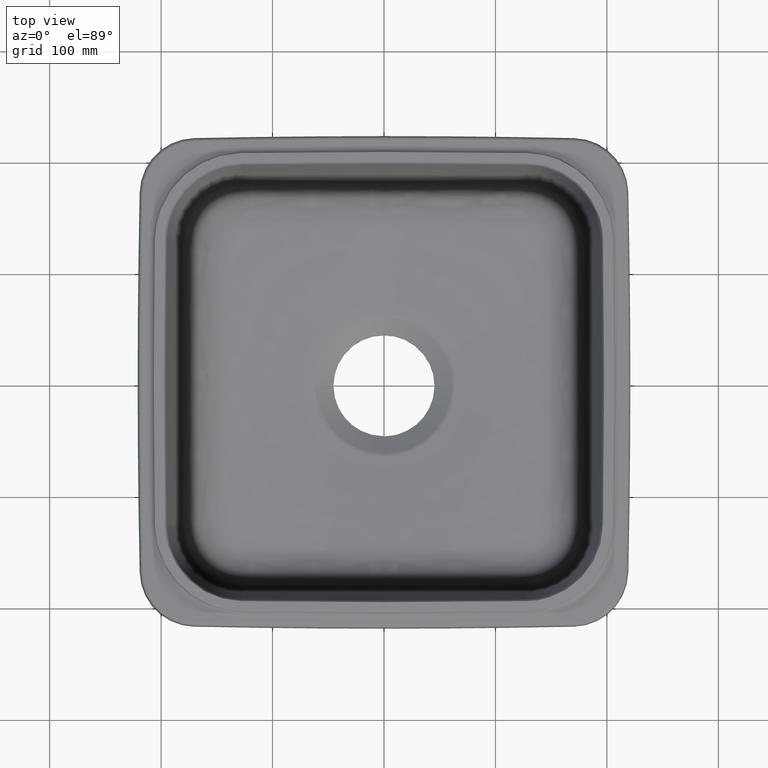
[diagram: clean part render]
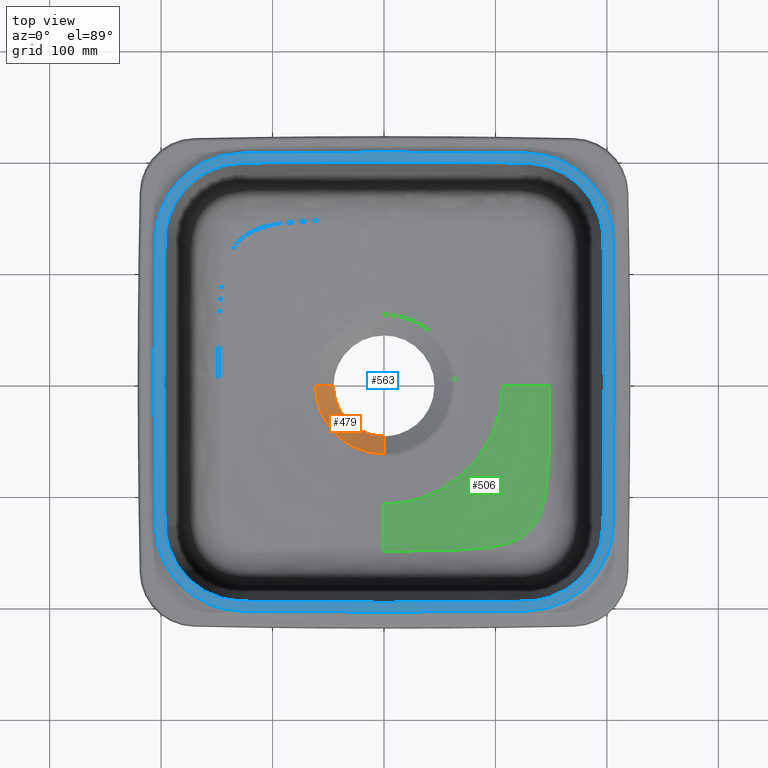
[diagram: same view with three faces highlighted in distinct colors, each labeled with its STEP entity id]
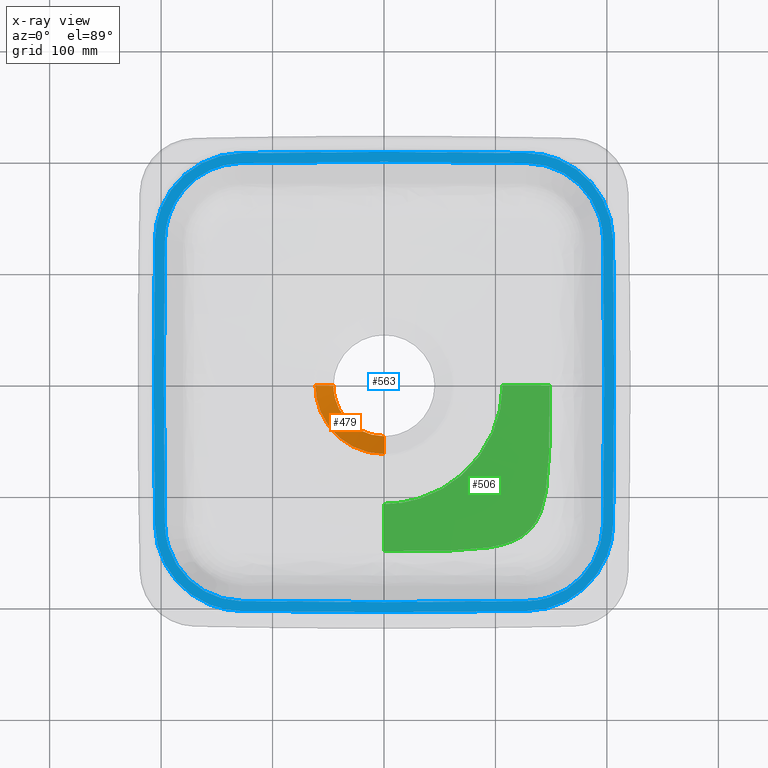
[diagram: x-ray of the same camera — body ghosted, the three highlighted faces saturated]
A machine part, top view with three faces highlighted in distinct colors.
The next image is the same camera in x-ray (body ghosted, the three faces saturated) — at least one of them is partly hidden behind the body in this view.
Their STEP definitions:

[orange] entity #479 — the highlighted conical surface has half-angle 60 deg.
#60=CONICAL_SURFACE('',#3050,62.5,59.9999999999997);
#336=LINE('',#11902,#362);
#346=LINE('',#11997,#372);
#362=VECTOR('',#3275,1.);
#372=VECTOR('',#3335,1.);
#479=ADVANCED_FACE('',(#757),#60,.F.);
#757=FACE_OUTER_BOUND('',#957,.T.);
#957=EDGE_LOOP('',(#1532,#1533,#1534,#1535));
#1532=ORIENTED_EDGE('',*,*,#2472,.F.);
#1533=ORIENTED_EDGE('',*,*,#2473,.F.);
#1534=ORIENTED_EDGE('',*,*,#2444,.T.);
#1535=ORIENTED_EDGE('',*,*,#2474,.T.);
#2096=VERTEX_POINT('',#11903);
#2097=VERTEX_POINT('',#11904);
#2112=VERTEX_POINT('',#11998);
#2113=VERTEX_POINT('',#11999);
#2444=EDGE_CURVE('',#2096,#2097,#336,.T.);
#2472=EDGE_CURVE('',#2112,#2113,#346,.T.);
#2473=EDGE_CURVE('',#2096,#2112,#2838,.T.);
#2474=EDGE_CURVE('',#2097,#2113,#2839,.T.);
#2838=B_SPLINE_CURVE_WITH_KNOTS('',3,(#12000,#12001,#12002,#12003,#12004,
#12005,#12006,#12007,#12008,#12009,#12010,#12011,#12012,#12013,#12014,#12015,
#12016,#12017),.UNSPECIFIED.,.F.,.F.,(4,2,2,2,2,2,2,2,4),(0.,0.125,0.25,
0.375,0.5,0.625,0.75,0.875,1.),.UNSPECIFIED.);
#2839=B_SPLINE_CURVE_WITH_KNOTS('',3,(#12018,#12019,#12020,#12021,#12022,
#12023,#12024,#12025,#12026,#12027),.UNSPECIFIED.,.F.,.F.,(4,2,2,2,4),(0.,
0.25,0.5,0.75,1.),.UNSPECIFIED.);
#3050=AXIS2_PLACEMENT_3D('',#12028,#3336,#3337);
#3275=DIRECTION('',(0.,0.866025403784436,-0.500000000000005));
#3335=DIRECTION('',(0.866025403784436,0.,-0.500000000000005));
#3336=DIRECTION('',(0.,0.,1.));
#3337=DIRECTION('',(-1.,0.,0.));
#11902=CARTESIAN_POINT('',(0.,0.,-36.084391824352));
#11903=CARTESIAN_POINT('',(6.23757597193778E-18,-61.4894681560618,-0.58343083212239));
#11904=CARTESIAN_POINT('',(-5.55460502255055E-15,-45.3567920678671,-9.89763571439079));
#11997=CARTESIAN_POINT('',(0.,0.,-36.084391824352));
#11998=CARTESIAN_POINT('',(-61.4894681560719,2.88798275662869E-30,-0.583430832116606));
#11999=CARTESIAN_POINT('',(-45.3567920678671,4.44368401804044E-15,-9.89763571439079));
#12000=CARTESIAN_POINT('',(1.09093221995658E-14,-61.4894681560699,-0.583430832117732));
#12001=CARTESIAN_POINT('',(-4.05588853231333,-61.4894681560699,-0.583430832117736));
#12002=CARTESIAN_POINT('',(-8.11559781146405,-61.083395852631,-0.583456137974551));
#12003=CARTESIAN_POINT('',(-15.9837025625754,-59.5110030152214,-0.583484067954009));
#12004=CARTESIAN_POINT('',(-19.8101664505475,-58.3497483226402,-0.583489120135852));
#12005=CARTESIAN_POINT('',(-27.2459371414985,-55.270219638399,-0.58347763929584));
#12006=CARTESIAN_POINT('',(-30.8372525180338,-53.3480141610561,-0.583462459274189));
#12007=CARTESIAN_POINT('',(-37.4886745529541,-48.903490940101,-0.583437163811027));
#12008=CARTESIAN_POINT('',(-40.5907871532448,-46.3658396491146,-0.583427518490429));
#12009=CARTESIAN_POINT('',(-46.3288475819185,-40.6330030812148,-0.583427661307155));
#12010=CARTESIAN_POINT('',(-48.912786705229,-37.4775273031208,-0.583437296891424));
#12011=CARTESIAN_POINT('',(-53.3649649190723,-30.8091043310762,-0.583462486506762));
#12012=CARTESIAN_POINT('',(-55.2522788855572,-27.2829331698823,-0.583477387008973));
#12013=CARTESIAN_POINT('',(-58.3395305885705,-19.8411038335578,-0.58348928234246));
#12014=CARTESIAN_POINT('',(-59.5203289191283,-15.948316162399,-0.583484121495931));
#12015=CARTESIAN_POINT('',(-61.0873968032196,-8.0842016059379,-0.583455855833687));
#12016=CARTESIAN_POINT('',(-61.4894681560719,-4.05588921292601,-0.583430832116605));
#12017=CARTESIAN_POINT('',(-61.4894681560719,7.05689838044364E-30,-0.583430832116606));
#12018=CARTESIAN_POINT('',(-2.77730251127527E-15,-45.3567920678671,-9.89763571439079));
#12019=CARTESIAN_POINT('',(-5.93719019795046,-45.3567920678671,-9.89763571439079));
#12020=CARTESIAN_POINT('',(-11.872044365088,-44.1762761754287,-9.89763571439079));
#12021=CARTESIAN_POINT('',(-22.8425413741141,-39.6321475283166,-9.89763571439079));
#12022=CARTESIAN_POINT('',(-27.873867793892,-36.2703226942221,-9.89763571439079));
#12023=CARTESIAN_POINT('',(-36.2703226942221,-27.8738677938919,-9.89763571439079));
#12024=CARTESIAN_POINT('',(-39.6321475283166,-22.8425413741141,-9.89763571439079));
#12025=CARTESIAN_POINT('',(-44.1762761754287,-11.872044365088,-9.89763571439079));
#12026=CARTESIAN_POINT('',(-45.3567920678671,-5.93719019795046,-9.89763571439079));
#12027=CARTESIAN_POINT('',(-45.3567920678671,0.,-9.89763571439079));
#12028=CARTESIAN_POINT('',(0.,0.,0.));

[blue] entity #563 — the highlighted planar face has unit normal (0, 0, 1).
#45=FACE_BOUND('',#1042,.T.);
#46=FACE_BOUND('',#1043,.T.);
#93=(
BOUNDED_CURVE()
B_SPLINE_CURVE(3,(#17273,#17274,#17275,#17276),.UNSPECIFIED.,.F.,.F.)
B_SPLINE_CURVE_WITH_KNOTS((4,4),(0.,1.),.UNSPECIFIED.)
CURVE()
GEOMETRIC_REPRESENTATION_ITEM()
RATIONAL_B_SPLINE_CURVE((0.500387600911378,0.500387600911378,0.500387600911378,
0.500387600911378))
REPRESENTATION_ITEM('')
);
#94=(
BOUNDED_CURVE()
B_SPLINE_CURVE(3,(#17293,#17294,#17295,#17296,#17297,#17298,#17299,#17300,
#17301,#17302,#17303,#17304,#17305,#17306,#17307),.UNSPECIFIED.,.F.,.F.)
B_SPLINE_CURVE_WITH_KNOTS((4,1,1,1,1,1,1,1,1,1,1,1,4),(0.,0.125,0.1875,
0.25,0.375,0.4375,0.500000000017339,0.625,0.6875,0.75,0.875,0.9375,1.),
 .UNSPECIFIED.)
CURVE()
GEOMETRIC_REPRESENTATION_ITEM()
RATIONAL_B_SPLINE_CURVE((0.500387600911378,0.500387600911378,0.500387600911378,
0.500387600911378,0.500387600911378,0.500387600911378,0.500387600911378,
0.500387600911378,0.500387600911378,0.500387600911378,0.500387600911378,
0.500387600911378,0.500387600911378,0.500387600911378,0.500387600911378))
REPRESENTATION_ITEM('')
);
#95=(
BOUNDED_CURVE()
B_SPLINE_CURVE(3,(#17355,#17356,#17357,#17358),.UNSPECIFIED.,.F.,.F.)
B_SPLINE_CURVE_WITH_KNOTS((4,4),(0.,1.),.UNSPECIFIED.)
CURVE()
GEOMETRIC_REPRESENTATION_ITEM()
RATIONAL_B_SPLINE_CURVE((0.500387600911378,0.500387600911378,0.500387600911378,
0.500387600911378))
REPRESENTATION_ITEM('')
);
#96=(
BOUNDED_CURVE()
B_SPLINE_CURVE(3,(#17373,#17374,#17375,#17376),.UNSPECIFIED.,.F.,.F.)
B_SPLINE_CURVE_WITH_KNOTS((4,4),(0.,1.),.UNSPECIFIED.)
CURVE()
GEOMETRIC_REPRESENTATION_ITEM()
RATIONAL_B_SPLINE_CURVE((0.500387600911378,0.500387600911378,0.500387600911378,
0.500387600911378))
REPRESENTATION_ITEM('')
);
#97=(
BOUNDED_CURVE()
B_SPLINE_CURVE(3,(#17391,#17392,#17393,#17394,#17395,#17396,#17397,#17398,
#17399,#17400,#17401,#17402,#17403,#17404,#17405),.UNSPECIFIED.,.F.,.F.)
B_SPLINE_CURVE_WITH_KNOTS((4,1,1,1,1,1,1,1,1,1,1,1,4),(0.,0.0624999999999998,
0.125,0.25,0.3125,0.375,0.499999999982661,0.5625,0.625,0.75,0.8125,0.875,
1.),.UNSPECIFIED.)
CURVE()
GEOMETRIC_REPRESENTATION_ITEM()
RATIONAL_B_SPLINE_CURVE((0.500387600911378,0.500387600911378,0.500387600911378,
0.500387600911378,0.500387600911378,0.500387600911378,0.500387600911378,
0.500387600911378,0.500387600911378,0.500387600911378,0.500387600911378,
0.500387600911378,0.500387600911378,0.500387600911378,0.500387600911378))
REPRESENTATION_ITEM('')
);
#98=(
BOUNDED_CURVE()
B_SPLINE_CURVE(3,(#17453,#17454,#17455,#17456),.UNSPECIFIED.,.F.,.F.)
B_SPLINE_CURVE_WITH_KNOTS((4,4),(0.,1.),.UNSPECIFIED.)
CURVE()
GEOMETRIC_REPRESENTATION_ITEM()
RATIONAL_B_SPLINE_CURVE((0.500387600911378,0.500387600911378,0.500387600911378,
0.500387600911378))
REPRESENTATION_ITEM('')
);
#99=(
BOUNDED_CURVE()
B_SPLINE_CURVE(3,(#17471,#17472,#17473,#17474),.UNSPECIFIED.,.F.,.F.)
B_SPLINE_CURVE_WITH_KNOTS((4,4),(0.,1.),.UNSPECIFIED.)
CURVE()
GEOMETRIC_REPRESENTATION_ITEM()
RATIONAL_B_SPLINE_CURVE((0.500387600911378,0.500387600911378,0.500387600911378,
0.500387600911378))
REPRESENTATION_ITEM('')
);
#100=(
BOUNDED_CURVE()
B_SPLINE_CURVE(3,(#17489,#17490,#17491,#17492,#17493,#17494,#17495,#17496,
#17497,#17498,#17499,#17500,#17501,#17502,#17503),.UNSPECIFIED.,.F.,.F.)
B_SPLINE_CURVE_WITH_KNOTS((4,1,1,1,1,1,1,1,1,1,1,1,4),(0.,0.125,0.1875,
0.25,0.375,0.4375,0.500000000017339,0.625,0.6875,0.75,0.875,0.9375,1.),
 .UNSPECIFIED.)
CURVE()
GEOMETRIC_REPRESENTATION_ITEM()
RATIONAL_B_SPLINE_CURVE((0.500387600911378,0.500387600911378,0.500387600911378,
0.500387600911378,0.500387600911378,0.500387600911378,0.500387600911378,
0.500387600911378,0.500387600911378,0.500387600911378,0.500387600911378,
0.500387600911378,0.500387600911378,0.500387600911378,0.500387600911378))
REPRESENTATION_ITEM('')
);
#101=(
BOUNDED_CURVE()
B_SPLINE_CURVE(3,(#17551,#17552,#17553,#17554),.UNSPECIFIED.,.F.,.F.)
B_SPLINE_CURVE_WITH_KNOTS((4,4),(0.,1.),.UNSPECIFIED.)
CURVE()
GEOMETRIC_REPRESENTATION_ITEM()
RATIONAL_B_SPLINE_CURVE((0.500387600911378,0.500387600911378,0.500387600911378,
0.500387600911378))
REPRESENTATION_ITEM('')
);
#102=(
BOUNDED_CURVE()
B_SPLINE_CURVE(3,(#17569,#17570,#17571,#17572),.UNSPECIFIED.,.F.,.F.)
B_SPLINE_CURVE_WITH_KNOTS((4,4),(0.,1.),.UNSPECIFIED.)
CURVE()
GEOMETRIC_REPRESENTATION_ITEM()
RATIONAL_B_SPLINE_CURVE((0.500387600911378,0.500387600911378,0.500387600911378,
0.500387600911378))
REPRESENTATION_ITEM('')
);
#103=(
BOUNDED_CURVE()
B_SPLINE_CURVE(3,(#17587,#17588,#17589,#17590,#17591,#17592,#17593,#17594,
#17595,#17596,#17597,#17598,#17599,#17600,#17601),.UNSPECIFIED.,.F.,.F.)
B_SPLINE_CURVE_WITH_KNOTS((4,1,1,1,1,1,1,1,1,1,1,1,4),(0.,0.0624999999999998,
0.125,0.25,0.3125,0.375,0.499999999982661,0.5625,0.625,0.75,0.8125,0.875,
1.),.UNSPECIFIED.)
CURVE()
GEOMETRIC_REPRESENTATION_ITEM()
RATIONAL_B_SPLINE_CURVE((0.500387600911378,0.500387600911378,0.500387600911378,
0.500387600911378,0.500387600911378,0.500387600911378,0.500387600911378,
0.500387600911378,0.500387600911378,0.500387600911378,0.500387600911378,
0.500387600911378,0.500387600911378,0.500387600911378,0.500387600911378))
REPRESENTATION_ITEM('')
);
#104=(
BOUNDED_CURVE()
B_SPLINE_CURVE(3,(#17649,#17650,#17651,#17652),.UNSPECIFIED.,.F.,.F.)
B_SPLINE_CURVE_WITH_KNOTS((4,4),(0.,1.),.UNSPECIFIED.)
CURVE()
GEOMETRIC_REPRESENTATION_ITEM()
RATIONAL_B_SPLINE_CURVE((0.500387600911378,0.500387600911378,0.500387600911378,
0.500387600911378))
REPRESENTATION_ITEM('')
);
#125=PLANE('',#3128);
#563=ADVANCED_FACE('',(#45,#46),#125,.T.);
#1042=EDGE_LOOP('',(#1894,#1895,#1896,#1897,#1898,#1899,#1900,#1901,#1902,
#1903,#1904,#1905));
#1043=EDGE_LOOP('',(#1906,#1907,#1908,#1909,#1910,#1911,#1912,#1913,#1914,
#1915,#1916,#1917));
#1894=ORIENTED_EDGE('',*,*,#2602,.T.);
#1895=ORIENTED_EDGE('',*,*,#2605,.T.);
#1896=ORIENTED_EDGE('',*,*,#2607,.T.);
#1897=ORIENTED_EDGE('',*,*,#2609,.T.);
#1898=ORIENTED_EDGE('',*,*,#2611,.T.);
#1899=ORIENTED_EDGE('',*,*,#2613,.T.);
#1900=ORIENTED_EDGE('',*,*,#2615,.T.);
#1901=ORIENTED_EDGE('',*,*,#2617,.T.);
#1902=ORIENTED_EDGE('',*,*,#2619,.T.);
#1903=ORIENTED_EDGE('',*,*,#2621,.T.);
#1904=ORIENTED_EDGE('',*,*,#2623,.T.);
#1905=ORIENTED_EDGE('',*,*,#2625,.T.);
#1906=ORIENTED_EDGE('',*,*,#2627,.T.);
#1907=ORIENTED_EDGE('',*,*,#2630,.T.);
#1908=ORIENTED_EDGE('',*,*,#2644,.T.);
#1909=ORIENTED_EDGE('',*,*,#2660,.F.);
#1910=ORIENTED_EDGE('',*,*,#2661,.F.);
#1911=ORIENTED_EDGE('',*,*,#2662,.F.);
#1912=ORIENTED_EDGE('',*,*,#2654,.T.);
#1913=ORIENTED_EDGE('',*,*,#2633,.T.);
#1914=ORIENTED_EDGE('',*,*,#2637,.T.);
#1915=ORIENTED_EDGE('',*,*,#2639,.T.);
#1916=ORIENTED_EDGE('',*,*,#2641,.T.);
#1917=ORIENTED_EDGE('',*,*,#2642,.T.);
#2186=VERTEX_POINT('',#17277);
#2187=VERTEX_POINT('',#17278);
#2188=VERTEX_POINT('',#17308);
#2189=VERTEX_POINT('',#17359);
#2190=VERTEX_POINT('',#17377);
#2191=VERTEX_POINT('',#17406);
#2192=VERTEX_POINT('',#17457);
#2193=VERTEX_POINT('',#17475);
#2194=VERTEX_POINT('',#17504);
#2195=VERTEX_POINT('',#17555);
#2196=VERTEX_POINT('',#17573);
#2197=VERTEX_POINT('',#17602);
#2198=VERTEX_POINT('',#17666);
#2199=VERTEX_POINT('',#17671);
#2200=VERTEX_POINT('',#17686);
#2202=VERTEX_POINT('',#17796);
#2203=VERTEX_POINT('',#17813);
#2205=VERTEX_POINT('',#17908);
#2206=VERTEX_POINT('',#17926);
#2207=VERTEX_POINT('',#17944);
#2208=VERTEX_POINT('',#18038);
#2213=VERTEX_POINT('',#19414);
#2216=VERTEX_POINT('',#19607);
#2217=VERTEX_POINT('',#19652);
#2602=EDGE_CURVE('',#2186,#2187,#93,.T.);
#2605=EDGE_CURVE('',#2187,#2188,#94,.T.);
#2607=EDGE_CURVE('',#2188,#2189,#95,.T.);
#2609=EDGE_CURVE('',#2189,#2190,#96,.T.);
#2611=EDGE_CURVE('',#2190,#2191,#97,.T.);
#2613=EDGE_CURVE('',#2191,#2192,#98,.T.);
#2615=EDGE_CURVE('',#2192,#2193,#99,.T.);
#2617=EDGE_CURVE('',#2193,#2194,#100,.T.);
#2619=EDGE_CURVE('',#2194,#2195,#101,.T.);
#2621=EDGE_CURVE('',#2195,#2196,#102,.T.);
#2623=EDGE_CURVE('',#2196,#2197,#103,.T.);
#2625=EDGE_CURVE('',#2197,#2186,#104,.T.);
#2627=EDGE_CURVE('',#2199,#2198,#2922,.T.);
#2630=EDGE_CURVE('',#2198,#2200,#2923,.T.);
#2633=EDGE_CURVE('',#2203,#2202,#2925,.T.);
#2637=EDGE_CURVE('',#2202,#2205,#2927,.T.);
#2639=EDGE_CURVE('',#2205,#2206,#2928,.T.);
#2641=EDGE_CURVE('',#2206,#2207,#2929,.T.);
#2642=EDGE_CURVE('',#2207,#2199,#2930,.T.);
#2644=EDGE_CURVE('',#2200,#2208,#2931,.T.);
#2654=EDGE_CURVE('',#2213,#2203,#2939,.T.);
#2660=EDGE_CURVE('',#2216,#2208,#2943,.T.);
#2661=EDGE_CURVE('',#2217,#2216,#2944,.T.);
#2662=EDGE_CURVE('',#2213,#2217,#2945,.T.);
#2922=B_SPLINE_CURVE_WITH_KNOTS('',3,(#17667,#17668,#17669,#17670),
 .UNSPECIFIED.,.F.,.F.,(4,4),(0.,1.),.UNSPECIFIED.);
#2923=B_SPLINE_CURVE_WITH_KNOTS('',3,(#17688,#17689,#17690,#17691,#17692,
#17693,#17694,#17695,#17696,#17697,#17698,#17699,#17700,#17701,#17702,#17703),
 .UNSPECIFIED.,.F.,.F.,(4,2,2,2,2,2,2,4),(0.,0.125,0.25,0.375,0.500000000000001,
0.625000000000001,0.750000000000001,1.),.UNSPECIFIED.);
#2925=B_SPLINE_CURVE_WITH_KNOTS('',3,(#17797,#17798,#17799,#17800,#17801,
#17802,#17803,#17804,#17805,#17806,#17807,#17808,#17809,#17810,#17811,#17812),
 .UNSPECIFIED.,.F.,.F.,(4,2,2,2,2,2,2,4),(0.,0.125,0.25,0.375,0.5,0.625,
0.75,1.),.UNSPECIFIED.);
#2927=B_SPLINE_CURVE_WITH_KNOTS('',3,(#17909,#17910,#17911,#17912),
 .UNSPECIFIED.,.F.,.F.,(4,4),(0.,1.),.UNSPECIFIED.);
#2928=B_SPLINE_CURVE_WITH_KNOTS('',3,(#17927,#17928,#17929,#17930),
 .UNSPECIFIED.,.F.,.F.,(4,4),(0.,1.),.UNSPECIFIED.);
#2929=B_SPLINE_CURVE_WITH_KNOTS('',3,(#17945,#17946,#17947,#17948,#17949,
#17950,#17951,#17952,#17953,#17954,#17955,#17956,#17957,#17958,#17959,#17960),
 .UNSPECIFIED.,.F.,.F.,(4,2,2,2,2,2,2,4),(0.,0.125,0.25,0.375,0.5,0.625,
0.75,1.),.UNSPECIFIED.);
#2930=B_SPLINE_CURVE_WITH_KNOTS('',3,(#18021,#18022,#18023,#18024),
 .UNSPECIFIED.,.F.,.F.,(4,4),(0.,1.),.UNSPECIFIED.);
#2931=B_SPLINE_CURVE_WITH_KNOTS('',3,(#18040,#18041,#18042,#18043),
 .UNSPECIFIED.,.F.,.F.,(4,4),(0.,1.),.UNSPECIFIED.);
#2939=B_SPLINE_CURVE_WITH_KNOTS('',3,(#19410,#19411,#19412,#19413),
 .UNSPECIFIED.,.F.,.F.,(4,4),(0.,1.),.UNSPECIFIED.);
#2943=B_SPLINE_CURVE_WITH_KNOTS('',3,(#19603,#19604,#19605,#19606),
 .UNSPECIFIED.,.F.,.F.,(4,4),(0.,1.),.UNSPECIFIED.);
#2944=B_SPLINE_CURVE_WITH_KNOTS('',3,(#19608,#19609,#19610,#19611,#19612,
#19613,#19614,#19615,#19616,#19617,#19618,#19619,#19620,#19621,#19622,#19623,
#19624,#19625,#19626,#19627,#19628,#19629,#19630,#19631,#19632,#19633,#19634,
#19635,#19636,#19637,#19638,#19639,#19640,#19641,#19642,#19643,#19644,#19645,
#19646,#19647,#19648,#19649,#19650,#19651),.UNSPECIFIED.,.F.,.F.,(4,2,2,
2,2,1,2,2,2,2,2,2,2,2,2,2,2,2,2,1,2,2,4),(0.,0.124999999999993,0.156249999999992,
0.16406249999999,0.16796874999999,0.17187499999999,0.187499999999989,0.218749999999988,
0.249999999999986,0.374999999999981,0.499999999999976,0.624999999999971,
0.687499999999968,0.718749999999968,0.749999999999967,0.874999999999963,
0.890624999999963,0.892578124999962,0.894531249999962,0.898437499999963,
0.906249999999967,0.937499999999978,1.),.UNSPECIFIED.);
#2945=B_SPLINE_CURVE_WITH_KNOTS('',3,(#19653,#19654,#19655,#19656),
 .UNSPECIFIED.,.F.,.F.,(4,4),(0.,1.),.UNSPECIFIED.);
#3128=AXIS2_PLACEMENT_3D('',#19657,#3493,#3494);
#3493=DIRECTION('',(0.,0.,1.));
#3494=DIRECTION('',(1.,0.,0.));
#17273=CARTESIAN_POINT('',(206.509851607879,1.0263372591154E-13,178.999999985002));
#17274=CARTESIAN_POINT('',(206.509851607879,42.7415496980326,178.999999985002));
#17275=CARTESIAN_POINT('',(206.171518076336,85.5007759135896,178.999999985002));
#17276=CARTESIAN_POINT('',(205.495439926261,128.236964284618,178.999999985002));
#17277=CARTESIAN_POINT('',(206.509851607879,3.42112419705133E-14,178.999999985002));
#17278=CARTESIAN_POINT('',(205.495439926261,128.236964284618,178.999999985002));
#17293=CARTESIAN_POINT('',(205.495439926261,128.236964284618,178.999999985002));
#17294=CARTESIAN_POINT('',(205.416923295608,133.200150034828,178.999999985002));
#17295=CARTESIAN_POINT('',(204.555809768522,140.844863790109,178.999999985002));
#17296=CARTESIAN_POINT('',(202.011156341809,150.563321873851,178.999999985002));
#17297=CARTESIAN_POINT('',(198.540600881032,159.991358526668,178.999999985002));
#17298=CARTESIAN_POINT('',(193.685924551509,168.945459244118,178.999999985002));
#17299=CARTESIAN_POINT('',(187.679171602173,176.998337809509,178.999999985002));
#17300=CARTESIAN_POINT('',(180.923480929248,184.434312897826,178.999999985002));
#17301=CARTESIAN_POINT('',(173.062634141852,190.911319678712,178.999999985002));
#17302=CARTESIAN_POINT('',(164.472321742722,196.120558764205,178.999999985002));
#17303=CARTESIAN_POINT('',(155.419410104508,200.47688692768,178.999999985002));
#17304=CARTESIAN_POINT('',(145.70218667133,203.52957019694,178.999999985002));
#17305=CARTESIAN_POINT('',(135.784396563218,205.133618362025,178.999999985002));
#17306=CARTESIAN_POINT('',(130.717566989622,205.456197275486,178.999999985002));
#17307=CARTESIAN_POINT('',(128.236964281869,205.495439926551,178.999999985002));
#17308=CARTESIAN_POINT('',(128.236964281869,205.495439926551,178.999999985002));
#17355=CARTESIAN_POINT('',(128.236964281869,205.495439926551,178.999999985002));
#17356=CARTESIAN_POINT('',(85.5007759102884,206.171518076444,178.999999985002));
#17357=CARTESIAN_POINT('',(42.7415496986505,206.509851608646,178.999999985002));
#17358=CARTESIAN_POINT('',(-2.00721162005756E-11,206.509851608454,178.999999985002));
#17359=CARTESIAN_POINT('',(6.69070540019178E-12,206.509851608454,178.999999985002));
#17373=CARTESIAN_POINT('',(2.00721162005755E-11,206.509851608454,178.999999985002));
#17374=CARTESIAN_POINT('',(-42.7415496986505,206.509851608646,178.999999985002));
#17375=CARTESIAN_POINT('',(-85.5007759102884,206.171518076444,178.999999985002));
#17376=CARTESIAN_POINT('',(-128.236964281869,205.495439926551,178.999999985002));
#17377=CARTESIAN_POINT('',(-128.236964281869,205.495439926551,178.999999985002));
#17391=CARTESIAN_POINT('',(-128.236964281869,205.495439926551,178.999999985002));
#17392=CARTESIAN_POINT('',(-130.717566989622,205.456197275486,178.999999985002));
#17393=CARTESIAN_POINT('',(-135.784396563218,205.133618362024,178.999999985002));
#17394=CARTESIAN_POINT('',(-145.70218667133,203.52957019694,178.999999985002));
#17395=CARTESIAN_POINT('',(-155.419410104508,200.47688692768,178.999999985002));
#17396=CARTESIAN_POINT('',(-164.472321742722,196.120558764205,178.999999985002));
#17397=CARTESIAN_POINT('',(-173.062634141852,190.911319678712,178.999999985002));
#17398=CARTESIAN_POINT('',(-180.923480929248,184.434312897826,178.999999985002));
#17399=CARTESIAN_POINT('',(-187.679171602173,176.998337809508,178.999999985002));
#17400=CARTESIAN_POINT('',(-193.685924551509,168.945459244118,178.999999985002));
#17401=CARTESIAN_POINT('',(-198.540600881032,159.991358526668,178.999999985002));
#17402=CARTESIAN_POINT('',(-202.011156341809,150.563321873851,178.999999985002));
#17403=CARTESIAN_POINT('',(-204.555809768522,140.844863790109,178.999999985002));
#17404=CARTESIAN_POINT('',(-205.416923295608,133.200150034828,178.999999985002));
#17405=CARTESIAN_POINT('',(-205.495439926261,128.236964284618,178.999999985002));
#17406=CARTESIAN_POINT('',(-205.495439926261,128.236964284618,178.999999985002));
#17453=CARTESIAN_POINT('',(-205.495439926261,128.236964284618,178.999999985002));
#17454=CARTESIAN_POINT('',(-206.171518076336,85.5007759135896,178.999999985002));
#17455=CARTESIAN_POINT('',(-206.509851607879,42.7415496980326,178.999999985002));
#17456=CARTESIAN_POINT('',(-206.509851607879,1.0263372591154E-13,178.999999985002));
#17457=CARTESIAN_POINT('',(-206.509851607879,3.42112419705133E-14,178.999999985002));
#17471=CARTESIAN_POINT('',(-206.509851607879,-1.0263372591154E-13,178.999999985002));
#17472=CARTESIAN_POINT('',(-206.509851607879,-42.7415496980326,178.999999985002));
#17473=CARTESIAN_POINT('',(-206.171518076336,-85.5007759135896,178.999999985002));
#17474=CARTESIAN_POINT('',(-205.495439926261,-128.236964284618,178.999999985002));
#17475=CARTESIAN_POINT('',(-205.495439926261,-128.236964284618,178.999999985002));
#17489=CARTESIAN_POINT('',(-205.495439926261,-128.236964284618,178.999999985002));
#17490=CARTESIAN_POINT('',(-205.416923295608,-133.200150034828,178.999999985002));
#17491=CARTESIAN_POINT('',(-204.555809768522,-140.844863790109,178.999999985002));
#17492=CARTESIAN_POINT('',(-202.011156341809,-150.563321873851,178.999999985002));
#17493=CARTESIAN_POINT('',(-198.540600881032,-159.991358526668,178.999999985002));
#17494=CARTESIAN_POINT('',(-193.685924551509,-168.945459244118,178.999999985002));
#17495=CARTESIAN_POINT('',(-187.679171602173,-176.998337809509,178.999999985002));
#17496=CARTESIAN_POINT('',(-180.923480929248,-184.434312897826,178.999999985002));
#17497=CARTESIAN_POINT('',(-173.062634141852,-190.911319678712,178.999999985002));
#17498=CARTESIAN_POINT('',(-164.472321742722,-196.120558764205,178.999999985002));
#17499=CARTESIAN_POINT('',(-155.419410104508,-200.47688692768,178.999999985002));
#17500=CARTESIAN_POINT('',(-145.70218667133,-203.52957019694,178.999999985002));
#17501=CARTESIAN_POINT('',(-135.784396563218,-205.133618362025,178.999999985002));
#17502=CARTESIAN_POINT('',(-130.717566989622,-205.456197275486,178.999999985002));
#17503=CARTESIAN_POINT('',(-128.236964281869,-205.495439926551,178.999999985002));
#17504=CARTESIAN_POINT('',(-128.236964281869,-205.495439926551,178.999999985002));
#17551=CARTESIAN_POINT('',(-128.236964281869,-205.495439926551,178.999999985002));
#17552=CARTESIAN_POINT('',(-85.5007759102884,-206.171518076444,178.999999985002));
#17553=CARTESIAN_POINT('',(-42.7415496986505,-206.509851608646,178.999999985002));
#17554=CARTESIAN_POINT('',(2.00721162005756E-11,-206.509851608454,178.999999985002));
#17555=CARTESIAN_POINT('',(6.69070540019188E-12,-206.509851608454,178.999999985002));
#17569=CARTESIAN_POINT('',(-2.00721162005755E-11,-206.509851608454,178.999999985002));
#17570=CARTESIAN_POINT('',(42.7415496986505,-206.509851608646,178.999999985002));
#17571=CARTESIAN_POINT('',(85.5007759102884,-206.171518076444,178.999999985002));
#17572=CARTESIAN_POINT('',(128.236964281869,-205.495439926551,178.999999985002));
#17573=CARTESIAN_POINT('',(128.236964281869,-205.495439926551,178.999999985002));
#17587=CARTESIAN_POINT('',(128.236964281869,-205.495439926551,178.999999985002));
#17588=CARTESIAN_POINT('',(130.717566989622,-205.456197275486,178.999999985002));
#17589=CARTESIAN_POINT('',(135.784396563218,-205.133618362024,178.999999985002));
#17590=CARTESIAN_POINT('',(145.70218667133,-203.52957019694,178.999999985002));
#17591=CARTESIAN_POINT('',(155.419410104508,-200.47688692768,178.999999985002));
#17592=CARTESIAN_POINT('',(164.472321742722,-196.120558764205,178.999999985002));
#17593=CARTESIAN_POINT('',(173.062634141852,-190.911319678712,178.999999985002));
#17594=CARTESIAN_POINT('',(180.923480929248,-184.434312897826,178.999999985002));
#17595=CARTESIAN_POINT('',(187.679171602173,-176.998337809508,178.999999985002));
#17596=CARTESIAN_POINT('',(193.685924551509,-168.945459244118,178.999999985002));
#17597=CARTESIAN_POINT('',(198.540600881032,-159.991358526668,178.999999985002));
#17598=CARTESIAN_POINT('',(202.011156341809,-150.563321873851,178.999999985002));
#17599=CARTESIAN_POINT('',(204.555809768522,-140.844863790109,178.999999985002));
#17600=CARTESIAN_POINT('',(205.416923295608,-133.200150034828,178.999999985002));
#17601=CARTESIAN_POINT('',(205.495439926261,-128.236964284618,178.999999985002));
#17602=CARTESIAN_POINT('',(205.495439926261,-128.236964284618,178.999999985002));
#17649=CARTESIAN_POINT('',(205.495439926261,-128.236964284618,178.999999985002));
#17650=CARTESIAN_POINT('',(206.171518076336,-85.5007759135896,178.999999985002));
#17651=CARTESIAN_POINT('',(206.509851607879,-42.7415496980326,178.999999985002));
#17652=CARTESIAN_POINT('',(206.509851607879,-1.0263372591154E-13,178.999999985002));
#17666=CARTESIAN_POINT('',(-128.095485349428,-196.552287004484,178.999999985002));
#17667=CARTESIAN_POINT('',(-2.00672811700997E-11,-197.565579671626,178.999999985002));
#17668=CARTESIAN_POINT('',(-42.6955497606939,-197.565579671626,178.999999985002));
#17669=CARTESIAN_POINT('',(-85.3940448770891,-197.227815449169,178.999999985002));
#17670=CARTESIAN_POINT('',(-128.095485349206,-196.552287004256,178.999999985002));
#17671=CARTESIAN_POINT('',(5.63869799993238E-17,-197.565579671626,178.999999985002));
#17686=CARTESIAN_POINT('',(-196.552287003635,-128.095485350062,178.999999985002));
#17688=CARTESIAN_POINT('',(-128.095485349763,-196.552287004827,178.999999985002));
#17689=CARTESIAN_POINT('',(-132.568048039755,-196.481531935326,178.999999985002));
#17690=CARTESIAN_POINT('',(-137.001018327115,-195.980897790068,178.999999985002));
#17691=CARTESIAN_POINT('',(-145.698830918795,-194.146691610484,178.999999985002));
#17692=CARTESIAN_POINT('',(-149.995010657143,-192.800104011092,178.999999985002));
#17693=CARTESIAN_POINT('',(-158.210149059077,-189.32430274066,178.999999985002));
#17694=CARTESIAN_POINT('',(-162.115353462789,-187.210683098082,178.999999985002));
#17695=CARTESIAN_POINT('',(-169.525731559987,-182.226527994397,178.999999985002));
#17696=CARTESIAN_POINT('',(-173.017169635703,-179.351143246022,178.999999985002));
#17697=CARTESIAN_POINT('',(-179.307905202589,-173.066421780848,178.999999985002));
#17698=CARTESIAN_POINT('',(-182.126084549848,-169.657847109003,178.999999985002));
#17699=CARTESIAN_POINT('',(-187.148464864697,-162.224531474565,178.999999985002));
#17700=CARTESIAN_POINT('',(-189.295598904939,-158.264666077918,178.999999985002));
#17701=CARTESIAN_POINT('',(-194.502411259226,-145.997863255345,178.999999985002));
#17702=CARTESIAN_POINT('',(-196.410129139825,-137.081554668889,178.999999985002));
#17703=CARTESIAN_POINT('',(-196.552287003993,-128.095485350287,178.999999985002));
#17796=CARTESIAN_POINT('',(196.552287003635,128.095485350062,178.999999985002));
#17797=CARTESIAN_POINT('',(128.095485349763,196.552287004827,178.999999985002));
#17798=CARTESIAN_POINT('',(132.568048039755,196.481531935325,178.999999985002));
#17799=CARTESIAN_POINT('',(137.001018326,195.980897790417,178.999999985002));
#17800=CARTESIAN_POINT('',(145.69883091991,194.146691610135,178.999999985002));
#17801=CARTESIAN_POINT('',(149.995010656179,192.8001040115,178.999999985002));
#17802=CARTESIAN_POINT('',(158.210149060041,189.324302740251,178.999999985002));
#17803=CARTESIAN_POINT('',(162.11535346293,187.210683097873,178.999999985002));
#17804=CARTESIAN_POINT('',(169.525731559846,182.226527994606,178.999999985002));
#17805=CARTESIAN_POINT('',(173.017169634403,179.351143247321,178.999999985002));
#17806=CARTESIAN_POINT('',(179.307905203889,173.066421779549,178.999999985002));
#17807=CARTESIAN_POINT('',(182.126084549583,169.657847109395,178.999999985002));
#17808=CARTESIAN_POINT('',(187.148464864963,162.224531474172,178.999999985002));
#17809=CARTESIAN_POINT('',(189.295598904889,158.26466607819,178.999999985002));
#17810=CARTESIAN_POINT('',(194.502411259326,145.997863254801,178.999999985002));
#17811=CARTESIAN_POINT('',(196.410129139825,137.081554668889,178.999999985002));
#17812=CARTESIAN_POINT('',(196.552287003993,128.095485350287,178.999999985002));
#17813=CARTESIAN_POINT('',(128.095485349428,196.552287004484,178.999999985002));
#17908=CARTESIAN_POINT('',(197.565579671051,3.90532116208352E-14,178.999999985002));
#17909=CARTESIAN_POINT('',(196.552287003098,128.095485349725,178.999999985002));
#17910=CARTESIAN_POINT('',(197.2278154484,85.3940448652917,178.999999985002));
#17911=CARTESIAN_POINT('',(197.565579671051,42.6955497487166,178.999999985002));
#17912=CARTESIAN_POINT('',(197.565579671051,8.32667268468867E-14,178.999999985002));
#17926=CARTESIAN_POINT('',(196.552287003635,-128.095485350062,178.999999985002));
#17927=CARTESIAN_POINT('',(197.565579671051,-9.71445146547012E-14,178.999999985002));
#17928=CARTESIAN_POINT('',(197.565579671051,-42.6955497487156,178.999999985002));
#17929=CARTESIAN_POINT('',(197.2278154484,-85.3940448652907,178.999999985002));
#17930=CARTESIAN_POINT('',(196.552287003098,-128.095485349725,178.999999985002));
#17944=CARTESIAN_POINT('',(128.095485349428,-196.552287004484,178.999999985002));
#17945=CARTESIAN_POINT('',(196.552287003993,-128.095485350287,178.999999985002));
#17946=CARTESIAN_POINT('',(196.481531925851,-132.568048585186,178.999999985002));
#17947=CARTESIAN_POINT('',(195.980897836828,-137.001018236099,178.999999985002));
#17948=CARTESIAN_POINT('',(194.146691576489,-145.698830967243,178.999999985002));
#17949=CARTESIAN_POINT('',(192.800104047209,-149.995010570926,178.999999985002));
#17950=CARTESIAN_POINT('',(189.324302750497,-158.21014903452,178.999999985002));
#17951=CARTESIAN_POINT('',(187.210683115712,-162.115353431333,178.999999985002));
#17952=CARTESIAN_POINT('',(182.226528027631,-169.525731514574,178.999999985002));
#17953=CARTESIAN_POINT('',(179.351143289045,-173.017169588671,178.999999985002));
#17954=CARTESIAN_POINT('',(173.066421810802,-179.307905176581,178.999999985002));
#17955=CARTESIAN_POINT('',(169.657847134173,-182.126084530122,178.999999985002));
#17956=CARTESIAN_POINT('',(162.224531522737,-187.148464835744,178.999999985002));
#17957=CARTESIAN_POINT('',(158.264666039967,-189.295598923484,178.999999985002));
#17958=CARTESIAN_POINT('',(145.997863431369,-194.502411181257,178.999999985002));
#17959=CARTESIAN_POINT('',(137.081553581103,-196.410129157901,178.999999985002));
#17960=CARTESIAN_POINT('',(128.095485349763,-196.552287004827,178.999999985002));
#18021=CARTESIAN_POINT('',(128.095485349206,-196.552287004256,178.999999985002));
#18022=CARTESIAN_POINT('',(85.3940448770947,-197.227815449169,178.999999985002));
#18023=CARTESIAN_POINT('',(42.6955497606995,-197.565579671626,178.999999985002));
#18024=CARTESIAN_POINT('',(2.00534033822919E-11,-197.565579671626,178.999999985002));
#18038=CARTESIAN_POINT('',(-197.565579671051,4.4604326743961E-14,178.999999985002));
#18040=CARTESIAN_POINT('',(-196.552287003098,-128.095485349725,178.999999985002));
#18041=CARTESIAN_POINT('',(-197.2278154484,-85.3940448652906,178.999999985002));
#18042=CARTESIAN_POINT('',(-197.565579671051,-42.6955497487155,178.999999985002));
#18043=CARTESIAN_POINT('',(-197.565579671051,-8.32667268468867E-14,178.999999985002));
#19410=CARTESIAN_POINT('',(2.00672811700997E-11,197.565579671626,178.999999985002));
#19411=CARTESIAN_POINT('',(42.6955497606951,197.565579671626,178.999999985002));
#19412=CARTESIAN_POINT('',(85.3940448770903,197.227815449169,178.999999985002));
#19413=CARTESIAN_POINT('',(128.095485349206,196.552287004256,178.999999985002));
#19414=CARTESIAN_POINT('',(5.60750210304938E-15,197.565579671626,178.999999985002));
#19603=CARTESIAN_POINT('',(-196.552287003098,128.095485349725,178.999999985002));
#19604=CARTESIAN_POINT('',(-197.230526975896,85.2226440444555,178.999999985002));
#19605=CARTESIAN_POINT('',(-197.56557967105,42.5224635108429,178.999999985002));
#19606=CARTESIAN_POINT('',(-197.565579671051,8.23165614064644E-14,178.999999985002));
#19607=CARTESIAN_POINT('',(-196.552287003635,128.095485350062,178.999999985002));
#19608=CARTESIAN_POINT('',(-128.095485349763,196.552287004827,178.999999985002));
#19609=CARTESIAN_POINT('',(-134.199951950828,196.455715533712,178.999999985002));
#19610=CARTESIAN_POINT('',(-138.987739156759,195.619117091639,179.000011304332));
#19611=CARTESIAN_POINT('',(-143.491093437707,194.583163842173,179.000033382931));
#19612=CARTESIAN_POINT('',(-144.317361277118,194.37430415244,179.000035221233));
#19613=CARTESIAN_POINT('',(-145.258880054948,194.120962641604,179.000030163245));
#19614=CARTESIAN_POINT('',(-145.442617027276,194.070674485497,179.000028785238));
#19615=CARTESIAN_POINT('',(-145.711401003386,193.995977257381,179.000026095797));
#19616=CARTESIAN_POINT('',(-145.799789592881,193.971340830078,179.000025023212));
#19617=CARTESIAN_POINT('',(-146.100554590524,193.886165321032,179.000021610966));
#19618=CARTESIAN_POINT('',(-146.847833908622,193.671801542999,179.000013616865));
#19619=CARTESIAN_POINT('',(-147.571986662695,193.450735750032,179.000008155223));
#19620=CARTESIAN_POINT('',(-149.266157960155,192.910289052384,178.999998629038));
#19621=CARTESIAN_POINT('',(-150.339247485701,192.536003145676,178.999996687949));
#19622=CARTESIAN_POINT('',(-152.352081476876,191.783864970646,178.999997629994));
#19623=CARTESIAN_POINT('',(-153.259561593998,191.420075614101,178.999999991831));
#19624=CARTESIAN_POINT('',(-157.840412809514,189.475712590638,178.999999957688));
#19625=CARTESIAN_POINT('',(-161.56217939503,187.528898030333,178.999998535102));
#19626=CARTESIAN_POINT('',(-168.995285907147,182.629812154042,178.999999750492));
#19627=CARTESIAN_POINT('',(-172.740820333849,179.633764045939,179.000000028249));
#19628=CARTESIAN_POINT('',(-179.676744765998,172.691310719313,178.999999941755));
#19629=CARTESIAN_POINT('',(-182.599629532927,169.039289327057,178.999993908747));
#19630=CARTESIAN_POINT('',(-186.306694816436,163.417436499508,178.99999325152));
#19631=CARTESIAN_POINT('',(-187.422590133491,161.526377079864,178.9999952293));
#19632=CARTESIAN_POINT('',(-188.912563330523,158.724544604573,178.999997509331));
#19633=CARTESIAN_POINT('',(-189.380107198696,157.79399230714,178.999998279724));
#19634=CARTESIAN_POINT('',(-190.260955236964,155.9414619512,178.999999522481));
#19635=CARTESIAN_POINT('',(-190.691438396308,154.978872466821,178.999999992317));
#19636=CARTESIAN_POINT('',(-192.545263409033,150.59740914633,178.999999955743));
#19637=CARTESIAN_POINT('',(-193.968142005531,146.453802090853,178.999948752971));
#19638=CARTESIAN_POINT('',(-195.140515503002,140.99495294246,179.000001958947));
#19639=CARTESIAN_POINT('',(-195.26422809368,140.379381177275,179.000008845119));
#19640=CARTESIAN_POINT('',(-195.39535385528,139.676634916148,179.000017637298));
#19641=CARTESIAN_POINT('',(-195.409811501435,139.598410088307,179.000018628593));
#19642=CARTESIAN_POINT('',(-195.438500575701,139.441676501851,179.000020639606));
#19643=CARTESIAN_POINT('',(-195.439307890019,139.43702499994,179.00002068298));
#19644=CARTESIAN_POINT('',(-195.456938407123,139.339779722273,179.000021735872));
#19645=CARTESIAN_POINT('',(-195.493407943178,139.137044663656,179.000023488301));
#19646=CARTESIAN_POINT('',(-195.533287270721,138.909561736279,179.000024256082));
#19647=CARTESIAN_POINT('',(-195.672689808957,138.09621713171,179.000024997217));
#19648=CARTESIAN_POINT('',(-195.805540527998,137.269358064726,179.000019720559));
#19649=CARTESIAN_POINT('',(-196.210639675514,134.256560092066,179.000002562664));
#19650=CARTESIAN_POINT('',(-196.49781555137,131.538729605694,178.999999985002));
#19651=CARTESIAN_POINT('',(-196.552287003993,128.095485350287,178.999999985002));
#19652=CARTESIAN_POINT('',(-128.095485349428,196.552287004484,178.999999985002));
#19653=CARTESIAN_POINT('',(-2.00565758225565E-11,197.565579671626,178.999999985002));
#19654=CARTESIAN_POINT('',(-42.5224636058531,197.565579671813,178.999999984999));
#19655=CARTESIAN_POINT('',(-85.2226440311823,197.230526977062,178.999999985002));
#19656=CARTESIAN_POINT('',(-128.095485349206,196.552287004256,178.999999985002));
#19657=CARTESIAN_POINT('',(95.6875586003953,95.6875586090735,178.999999985002));

[green] entity #506 — the highlighted face is a freeform B-spline surface patch.
#506=ADVANCED_FACE('',(#783),#626,.F.);
#626=B_SPLINE_SURFACE_WITH_KNOTS('',3,3,((#13487,#13488,#13489,#13490,#13491,
#13492,#13493,#13494,#13495,#13496,#13497,#13498,#13499,#13500,#13501,#13502,
#13503,#13504,#13505,#13506,#13507,#13508,#13509,#13510,#13511,#13512,#13513,
#13514,#13515,#13516,#13517,#13518,#13519,#13520,#13521,#13522,#13523,#13524,
#13525,#13526,#13527,#13528,#13529,#13530,#13531,#13532,#13533,#13534,#13535,
#13536,#13537,#13538,#13539,#13540,#13541,#13542,#13543,#13544),(#13545,
#13546,#13547,#13548,#13549,#13550,#13551,#13552,#13553,#13554,#13555,#13556,
#13557,#13558,#13559,#13560,#13561,#13562,#13563,#13564,#13565,#13566,#13567,
#13568,#13569,#13570,#13571,#13572,#13573,#13574,#13575,#13576,#13577,#13578,
#13579,#13580,#13581,#13582,#13583,#13584,#13585,#13586,#13587,#13588,#13589,
#13590,#13591,#13592,#13593,#13594,#13595,#13596,#13597,#13598,#13599,#13600,
#13601,#13602),(#13603,#13604,#13605,#13606,#13607,#13608,#13609,#13610,
#13611,#13612,#13613,#13614,#13615,#13616,#13617,#13618,#13619,#13620,#13621,
#13622,#13623,#13624,#13625,#13626,#13627,#13628,#13629,#13630,#13631,#13632,
#13633,#13634,#13635,#13636,#13637,#13638,#13639,#13640,#13641,#13642,#13643,
#13644,#13645,#13646,#13647,#13648,#13649,#13650,#13651,#13652,#13653,#13654,
#13655,#13656,#13657,#13658,#13659,#13660),(#13661,#13662,#13663,#13664,
#13665,#13666,#13667,#13668,#13669,#13670,#13671,#13672,#13673,#13674,#13675,
#13676,#13677,#13678,#13679,#13680,#13681,#13682,#13683,#13684,#13685,#13686,
#13687,#13688,#13689,#13690,#13691,#13692,#13693,#13694,#13695,#13696,#13697,
#13698,#13699,#13700,#13701,#13702,#13703,#13704,#13705,#13706,#13707,#13708,
#13709,#13710,#13711,#13712,#13713,#13714,#13715,#13716,#13717,#13718),
(#13719,#13720,#13721,#13722,#13723,#13724,#13725,#13726,#13727,#13728,
#13729,#13730,#13731,#13732,#13733,#13734,#13735,#13736,#13737,#13738,#13739,
#13740,#13741,#13742,#13743,#13744,#13745,#13746,#13747,#13748,#13749,#13750,
#13751,#13752,#13753,#13754,#13755,#13756,#13757,#13758,#13759,#13760,#13761,
#13762,#13763,#13764,#13765,#13766,#13767,#13768,#13769,#13770,#13771,#13772,
#13773,#13774,#13775,#13776)),.UNSPECIFIED.,.F.,.F.,.F.,(4,1,4),(4,1,1,
1,1,1,1,1,1,1,1,1,1,1,1,1,1,1,1,1,1,1,1,1,1,1,1,2,1,1,1,1,1,1,1,1,1,1,1,
1,1,1,1,1,1,1,1,1,1,1,1,1,1,1,4),(0.,0.5,1.),(0.,0.03125,0.0625,0.09375,
0.125,0.15625,0.1875,0.21875,0.234375,0.25,0.265625,0.28125,0.296875,0.3125,
0.328125,0.34375,0.359375,0.375,0.390625,0.40625,0.421875,0.4375,0.453125,
0.46875,0.4765625,0.484375,0.4921875,0.5,0.5078125,0.515625,0.5234375,0.53125,
0.546875,0.5625,0.578125,0.59375,0.609375,0.625,0.640625,0.65625,0.671875,
0.6875,0.703125,0.71875,0.734375,0.75,0.765625,0.78125,0.8125,0.84375,0.875,
0.90625,0.9375,0.96875,1.),.UNSPECIFIED.);
#783=FACE_OUTER_BOUND('',#985,.T.);
#985=EDGE_LOOP('',(#1660,#1661,#1662,#1663));
#1660=ORIENTED_EDGE('',*,*,#2540,.F.);
#1661=ORIENTED_EDGE('',*,*,#2541,.F.);
#1662=ORIENTED_EDGE('',*,*,#2542,.F.);
#1663=ORIENTED_EDGE('',*,*,#2513,.T.);
#2132=VERTEX_POINT('',#12397);
#2133=VERTEX_POINT('',#12402);
#2154=VERTEX_POINT('',#13405);
#2155=VERTEX_POINT('',#13481);
#2513=EDGE_CURVE('',#2132,#2133,#2853,.T.);
#2540=EDGE_CURVE('',#2154,#2133,#2876,.T.);
#2541=EDGE_CURVE('',#2155,#2154,#2877,.T.);
#2542=EDGE_CURVE('',#2132,#2155,#2878,.T.);
#2853=B_SPLINE_CURVE_WITH_KNOTS('',3,(#12403,#12404,#12405,#12406,#12407,
#12408,#12409,#12410,#12411,#12412,#12413,#12414,#12415,#12416,#12417,#12418,
#12419,#12420,#12421,#12422,#12423,#12424,#12425,#12426,#12427,#12428,#12429,
#12430,#12431,#12432,#12433,#12434,#12435,#12436,#12437,#12438,#12439,#12440,
#12441,#12442,#12443,#12444,#12445,#12446,#12447,#12448,#12449,#12450,#12451,
#12452,#12453,#12454,#12455,#12456,#12457,#12458,#12459,#12460),
 .UNSPECIFIED.,.F.,.F.,(4,1,1,1,1,1,1,1,1,1,1,1,1,1,1,1,1,1,1,1,1,1,1,1,
1,1,1,2,1,1,1,1,1,1,1,1,1,1,1,1,1,1,1,1,1,1,1,1,1,1,1,1,1,1,4),(0.,0.03125,
0.0625,0.09375,0.125,0.15625,0.1875,0.21875,0.234375,0.25,0.265625,0.28125,
0.296875,0.3125,0.328125,0.34375,0.359375,0.375,0.390625,0.40625,0.421875,
0.4375,0.453125,0.46875,0.4765625,0.484375,0.4921875,0.5,0.5078125,0.515625,
0.5234375,0.53125,0.546875,0.5625,0.578125,0.59375,0.609375,0.625,0.640625,
0.65625,0.671875,0.6875,0.703125,0.71875,0.734375,0.75,0.765625,0.78125,
0.8125,0.84375,0.875,0.90625,0.9375,0.96875,1.),.UNSPECIFIED.);
#2876=B_SPLINE_CURVE_WITH_KNOTS('',3,(#13400,#13401,#13402,#13403,#13404),
 .UNSPECIFIED.,.F.,.F.,(4,1,4),(0.,0.5,1.),.UNSPECIFIED.);
#2877=B_SPLINE_CURVE_WITH_KNOTS('',3,(#13406,#13407,#13408,#13409,#13410,
#13411,#13412,#13413,#13414,#13415,#13416,#13417,#13418,#13419,#13420,#13421,
#13422,#13423,#13424,#13425,#13426,#13427,#13428,#13429,#13430,#13431,#13432,
#13433,#13434,#13435,#13436,#13437,#13438,#13439,#13440,#13441,#13442,#13443,
#13444,#13445,#13446,#13447,#13448,#13449,#13450,#13451,#13452,#13453,#13454,
#13455,#13456,#13457,#13458,#13459,#13460,#13461,#13462,#13463,#13464,#13465,
#13466,#13467,#13468,#13469,#13470,#13471,#13472,#13473,#13474,#13475,#13476,
#13477,#13478,#13479,#13480),.UNSPECIFIED.,.F.,.F.,(4,1,1,1,1,1,1,1,1,1,
1,1,1,1,1,1,1,1,1,1,1,1,1,1,1,1,1,1,1,1,1,1,1,1,1,2,1,1,1,1,1,1,1,1,1,1,
1,1,1,1,1,1,1,1,1,1,1,1,1,1,1,1,1,1,1,1,1,1,1,1,1,4),(0.,0.03125,0.0625,
0.09375,0.125,0.15625,0.1875,0.21875,0.25,0.265625,0.28125,0.296875,0.3125,
0.328125,0.34375,0.359375,0.375,0.390625,0.40625,0.421875,0.4296875,0.4375,
0.4384765625,0.43896484375,0.439453125,0.44140625,0.4453125,0.44921875,
0.453125,0.45703125,0.4609375,0.46875,0.4765625,0.484375,0.4921875,0.5,
0.5078125,0.515625,0.5234375,0.53125,0.5390625,0.54296875,0.546875,0.55078125,
0.5546875,0.55859375,0.560546875,0.56103515625,0.5615234375,0.5625,0.5703125,
0.578125,0.5859375,0.59375,0.609375,0.625,0.640625,0.65625,0.671875,0.6875,
0.703125,0.71875,0.734375,0.75,0.78125,0.8125,0.84375,0.875,0.90625,0.9375,
0.96875,1.),.UNSPECIFIED.);
#2878=B_SPLINE_CURVE_WITH_KNOTS('',3,(#13482,#13483,#13484,#13485,#13486),
 .UNSPECIFIED.,.F.,.F.,(4,1,4),(0.,0.5,1.),.UNSPECIFIED.);
#12397=CARTESIAN_POINT('',(106.427443049883,3.85185988877447E-31,2.86199999999997));
#12402=CARTESIAN_POINT('',(0.,-106.427443050462,2.86199999999998));
#12403=CARTESIAN_POINT('',(106.427443049883,-2.11497486191092E-14,2.86199999999997));
#12404=CARTESIAN_POINT('',(106.427443049883,-1.74165928718173,2.86199999999997));
#12405=CARTESIAN_POINT('',(106.343739671209,-5.22498811200743,2.86199999999997));
#12406=CARTESIAN_POINT('',(105.964894790954,-10.4377683670833,2.86199999999998));
#12407=CARTESIAN_POINT('',(105.331727979413,-15.6258234006327,2.86199999999997));
#12408=CARTESIAN_POINT('',(104.444345964889,-20.7765050282067,2.86199999999998));
#12409=CARTESIAN_POINT('',(103.303956918686,-25.8771496908182,2.86199999999998));
#12410=CARTESIAN_POINT('',(101.912813159855,-30.91518792707,2.86199999999998));
#12411=CARTESIAN_POINT('',(100.547248474615,-35.0510616150499,2.86199999999998));
#12412=CARTESIAN_POINT('',(99.3330815222162,-38.316204594484,2.86199999999998));
#12413=CARTESIAN_POINT('',(98.3622104685009,-40.7418080295954,2.86199999999998));
#12414=CARTESIAN_POINT('',(97.3317053252574,-43.1426818827635,2.86199999999998));
#12415=CARTESIAN_POINT('',(96.2422651675524,-45.5173945010567,2.86199999999998));
#12416=CARTESIAN_POINT('',(95.0945890479258,-47.864514281328,2.86199999999998));
#12417=CARTESIAN_POINT('',(93.8894524382342,-50.1826561933663,2.86199999999998));
#12418=CARTESIAN_POINT('',(92.6276307811706,-52.4704352641466,2.86199999999998));
#12419=CARTESIAN_POINT('',(91.3099659854881,-54.7265139539961,2.86199999999998));
#12420=CARTESIAN_POINT('',(89.9372999268527,-56.94955478123,2.86199999999998));
#12421=CARTESIAN_POINT('',(88.510532490763,-59.1382671159456,2.86199999999998));
#12422=CARTESIAN_POINT('',(87.0305635288813,-61.291360381488,2.86199999999998));
#12423=CARTESIAN_POINT('',(85.4983439157412,-63.4075894687342,2.86199999999998));
#12424=CARTESIAN_POINT('',(83.9148244946436,-65.4857093129774,2.86199999999998));
#12425=CARTESIAN_POINT('',(82.2810019895702,-67.5245184677152,2.86199999999998));
#12426=CARTESIAN_POINT('',(80.5978730992191,-69.5228155190931,2.86199999999998));
#12427=CARTESIAN_POINT('',(79.1550428564555,-71.1533366208367,2.86199999999998));
#12428=CARTESIAN_POINT('',(77.9771644450109,-72.4363378351681,2.86199999999998));
#12429=CARTESIAN_POINT('',(77.0820834506645,-73.3877410138253,2.86199999999998));
#12430=CARTESIAN_POINT('',(76.1754651914601,-74.328156564032,2.86199999999998));
#12431=CARTESIAN_POINT('',(75.5634514562009,-74.9476819140775,2.86199999999998));
#12432=CARTESIAN_POINT('',(74.9476819135528,-75.5634514567292,2.86199999999998));
#12433=CARTESIAN_POINT('',(74.3281565635158,-76.1754651919869,2.86199999999998));
#12434=CARTESIAN_POINT('',(73.3877410132913,-77.082083451215,2.86199999999998));
#12435=CARTESIAN_POINT('',(72.4363378346668,-77.977164445542,2.86199999999998));
#12436=CARTESIAN_POINT('',(71.1533366200668,-79.1550428572371,2.86199999999998));
#12437=CARTESIAN_POINT('',(69.5228155183036,-80.5978731000288,2.86199999999998));
#12438=CARTESIAN_POINT('',(67.5245184667147,-82.281001990534,2.86199999999998));
#12439=CARTESIAN_POINT('',(65.4857093122229,-83.9148244954418,2.86199999999998));
#12440=CARTESIAN_POINT('',(63.4075894678444,-85.4983439165989,2.86199999999998));
#12441=CARTESIAN_POINT('',(61.2913603806747,-87.0305635297111,2.86199999999998));
#12442=CARTESIAN_POINT('',(59.1382671150775,-88.5105324915995,2.86199999999998));
#12443=CARTESIAN_POINT('',(56.9495547809499,-89.9372999273969,2.86199999999998));
#12444=CARTESIAN_POINT('',(54.7265139536973,-91.3099659859957,2.86199999999998));
#12445=CARTESIAN_POINT('',(52.4704352627012,-92.6276307823611,2.86199999999998));
#12446=CARTESIAN_POINT('',(50.1826561906563,-93.8894524400618,2.86199999999998));
#12447=CARTESIAN_POINT('',(47.864514278425,-95.0945890498509,2.86199999999998));
#12448=CARTESIAN_POINT('',(45.5173944985752,-96.2422651691445,2.86199999999998));
#12449=CARTESIAN_POINT('',(43.1426818803725,-97.3317053267824,2.86199999999998));
#12450=CARTESIAN_POINT('',(40.7418080277015,-98.3622104697415,2.86199999999998));
#12451=CARTESIAN_POINT('',(38.3162045927512,-99.3330815233853,2.86199999999998));
#12452=CARTESIAN_POINT('',(35.0510616138602,-100.547248475521,2.86199999999998));
#12453=CARTESIAN_POINT('',(30.9151879250295,-101.912813161069,2.86199999999998));
#12454=CARTESIAN_POINT('',(25.8771496906745,-103.303956919296,2.86199999999998));
#12455=CARTESIAN_POINT('',(20.776505028233,-104.444345965553,2.86199999999998));
#12456=CARTESIAN_POINT('',(15.6258234024101,-105.331727979877,2.86199999999998));
#12457=CARTESIAN_POINT('',(10.4377683679935,-105.964894791674,2.86199999999998));
#12458=CARTESIAN_POINT('',(5.22498811489255,-106.343739671818,2.86199999999998));
#12459=CARTESIAN_POINT('',(1.74165928733104,-106.427443050462,2.86199999999998));
#12460=CARTESIAN_POINT('',(1.44170281350326E-10,-106.427443050462,2.86199999999998));
#13400=CARTESIAN_POINT('',(-9.79514067473194E-11,-148.670141700059,5.6142340281965));
#13401=CARTESIAN_POINT('',(-8.1930633794614E-11,-141.629691925144,5.1555283568316));
#13402=CARTESIAN_POINT('',(-7.36130066091814E-11,-127.548792375249,4.23811701409747));
#13403=CARTESIAN_POINT('',(-1.12743216863313E-10,-113.4678928254,3.32070567136642));
#13404=CARTESIAN_POINT('',(-1.44170281350326E-10,-106.427443050462,2.86199999999998));
#13405=CARTESIAN_POINT('',(0.,-148.670141700059,5.6142340281965));
#13406=CARTESIAN_POINT('',(148.670141698923,-2.78225158868867E-14,5.6142340281965));
#13407=CARTESIAN_POINT('',(148.670141698925,-2.79190458666675,5.6142340281966));
#13408=CARTESIAN_POINT('',(148.670296388784,-8.37571347181307,5.61423402819679));
#13409=CARTESIAN_POINT('',(148.668089129003,-16.7514274330492,5.61423402819709));
#13410=CARTESIAN_POINT('',(148.656227680821,-25.1271357645351,5.61423402819738));
#13411=CARTESIAN_POINT('',(148.624013654331,-33.5027981214238,5.61423402819767));
#13412=CARTESIAN_POINT('',(148.556982940102,-41.8782710440814,5.61423402819796));
#13413=CARTESIAN_POINT('',(148.43609302355,-50.2531753711338,5.61423402819824));
#13414=CARTESIAN_POINT('',(148.236382307592,-58.626635453399,5.61423402819852));
#13415=CARTESIAN_POINT('',(147.976766930515,-65.601793904599,5.61423402819876));
#13416=CARTESIAN_POINT('',(147.690700701451,-71.1783486396554,5.61423402819894));
#13417=CARTESIAN_POINT('',(147.429733290327,-75.3581423637726,5.61423402819908));
#13418=CARTESIAN_POINT('',(147.11409183227,-79.5341925361649,5.61423402819921));
#13419=CARTESIAN_POINT('',(146.733991159826,-83.7049118897509,5.61423402819934));
#13420=CARTESIAN_POINT('',(146.277820702323,-87.868056039651,5.61423402819948));
#13421=CARTESIAN_POINT('',(145.731758127193,-92.0204510460663,5.6142340281996));
#13422=CARTESIAN_POINT('',(145.079305183903,-96.1575808163327,5.61423402819972));
#13423=CARTESIAN_POINT('',(144.300796542405,-100.273032329543,5.61423402819984));
#13424=CARTESIAN_POINT('',(143.372859809902,-104.357634109504,5.61423402819995));
#13425=CARTESIAN_POINT('',(142.268057352925,-108.398345198415,5.61423402820005));
#13426=CARTESIAN_POINT('',(141.173743142952,-111.713721015189,5.61423402820013));
#13427=CARTESIAN_POINT('',(140.176770577065,-114.321956844087,5.61423402820018));
#13428=CARTESIAN_POINT('',(139.600931152359,-115.689055724154,5.61423402820022));
#13429=CARTESIAN_POINT('',(139.263648646744,-116.446177340713,5.61423402820023));
#13430=CARTESIAN_POINT('',(139.192094283794,-116.605326124904,5.61423402820023));
#13431=CARTESIAN_POINT('',(139.084213224581,-116.843801507594,5.61423402820023));
#13432=CARTESIAN_POINT('',(138.8474835649,-117.359142174127,5.61423402820024));
#13433=CARTESIAN_POINT('',(138.472093388459,-118.146764782232,5.61423402820026));
#13434=CARTESIAN_POINT('',(138.00320776726,-119.082927193134,5.61423402820028));
#13435=CARTESIAN_POINT('',(137.51544920473,-120.009388688537,5.61423402820029));
#13436=CARTESIAN_POINT('',(137.008363175484,-120.925431127505,5.6142340282003));
#13437=CARTESIAN_POINT('',(136.305987816014,-122.131899775289,5.61423402820032));
#13438=CARTESIAN_POINT('',(135.377861948626,-123.610074649037,5.61423402820034));
#13439=CARTESIAN_POINT('',(134.181870005846,-125.329575649587,5.61423402820035));
#13440=CARTESIAN_POINT('',(132.902830255963,-126.988290966567,5.61423402820037));
#13441=CARTESIAN_POINT('',(131.54128945383,-128.580030029469,5.61423402820038));
#13442=CARTESIAN_POINT('',(130.579917213123,-129.592830729867,5.61423402820038));
#13443=CARTESIAN_POINT('',(129.592830742893,-130.579917200031,5.61423402820038));
#13444=CARTESIAN_POINT('',(128.58003004314,-131.541289439962,5.61423402820038));
#13445=CARTESIAN_POINT('',(126.98829097442,-132.902830247329,5.61423402820037));
#13446=CARTESIAN_POINT('',(125.329575664154,-134.181869993507,5.61423402820036));
#13447=CARTESIAN_POINT('',(123.610074629632,-135.377861956155,5.61423402820035));
#13448=CARTESIAN_POINT('',(122.131899774365,-136.305987811918,5.61423402820032));
#13449=CARTESIAN_POINT('',(120.925431115857,-137.008363175393,5.6142340282003));
#13450=CARTESIAN_POINT('',(120.009388686596,-137.51544919931,5.61423402820029));
#13451=CARTESIAN_POINT('',(119.082927190433,-138.003207760917,5.61423402820027));
#13452=CARTESIAN_POINT('',(118.14676477353,-138.472093385417,5.61423402820026));
#13453=CARTESIAN_POINT('',(117.3591421728,-138.847483557471,5.61423402820024));
#13454=CARTESIAN_POINT('',(116.843801507335,-139.084213216727,5.61423402820024));
#13455=CARTESIAN_POINT('',(116.605326124932,-139.192094275658,5.61423402820023));
#13456=CARTESIAN_POINT('',(116.446177340214,-139.263648638988,5.61423402820023));
#13457=CARTESIAN_POINT('',(115.6890557135,-139.600931143192,5.61423402820022));
#13458=CARTESIAN_POINT('',(114.321957002502,-140.176770678254,5.61423402820018));
#13459=CARTESIAN_POINT('',(112.365794986779,-140.924503926557,5.61423402820014));
#13460=CARTESIAN_POINT('',(110.387518743863,-141.611459291477,5.6142340282001));
#13461=CARTESIAN_POINT('',(107.724922617131,-142.452195903227,5.61423402820003));
#13462=CARTESIAN_POINT('',(104.357634123113,-143.372859797407,5.61423402819995));
#13463=CARTESIAN_POINT('',(100.273032383138,-144.300796524499,5.61423402819984));
#13464=CARTESIAN_POINT('',(96.1575806970435,-145.079305192286,5.61423402819972));
#13465=CARTESIAN_POINT('',(92.0204510675234,-145.731758116924,5.6142340281996));
#13466=CARTESIAN_POINT('',(87.8680561207028,-146.277820680793,5.61423402819948));
#13467=CARTESIAN_POINT('',(83.7049118556085,-146.733991158355,5.61423402819934));
#13468=CARTESIAN_POINT('',(79.5341925823153,-147.114091821114,5.61423402819922));
#13469=CARTESIAN_POINT('',(75.3581423372514,-147.429733287578,5.61423402819908));
#13470=CARTESIAN_POINT('',(71.1783486384468,-147.690700696849,5.61423402819894));
#13471=CARTESIAN_POINT('',(65.6017938194073,-147.97676693107,5.61423402819876));
#13472=CARTESIAN_POINT('',(58.626635460553,-148.236382304629,5.61423402819853));
#13473=CARTESIAN_POINT('',(50.2531753689036,-148.436093022417,5.61423402819823));
#13474=CARTESIAN_POINT('',(41.8782710260702,-148.556982939777,5.61423402819795));
#13475=CARTESIAN_POINT('',(33.5027981328766,-148.62401365462,5.61423402819767));
#13476=CARTESIAN_POINT('',(25.1271357050501,-148.656227681618,5.61423402819738));
#13477=CARTESIAN_POINT('',(16.7514276064373,-148.668089129834,5.61423402819708));
#13478=CARTESIAN_POINT('',(8.37571370293336,-148.670296389928,5.61423402819679));
#13479=CARTESIAN_POINT('',(2.79190458706825,-148.670141700061,5.6142340281966));
#13480=CARTESIAN_POINT('',(9.79514067473194E-11,-148.670141700059,5.6142340281965));
#13481=CARTESIAN_POINT('',(148.670141698923,0.,5.6142340281965));
#13482=CARTESIAN_POINT('',(106.427443049883,2.11497486191092E-14,2.86199999999997));
#13483=CARTESIAN_POINT('',(113.467892824703,2.09500174379305E-14,3.32070567136476));
#13484=CARTESIAN_POINT('',(127.548792374474,2.18624141347496E-14,4.23811701410285));
#13485=CARTESIAN_POINT('',(141.629691924056,2.53985289497798E-14,5.15552835682864));
#13486=CARTESIAN_POINT('',(148.670141698923,2.78225158868867E-14,5.6142340281965));
#13487=CARTESIAN_POINT('',(9.79514067473194E-11,-148.670141700059,5.6142340281965));
#13488=CARTESIAN_POINT('',(2.79190458706825,-148.670141700061,5.6142340281966));
#13489=CARTESIAN_POINT('',(8.37571370293336,-148.670296389928,5.61423402819679));
#13490=CARTESIAN_POINT('',(16.7514276049564,-148.668089129843,5.61423402819708));
#13491=CARTESIAN_POINT('',(25.1271357109735,-148.656227681583,5.61423402819738));
#13492=CARTESIAN_POINT('',(33.5027981225107,-148.624013654682,5.61423402819767));
#13493=CARTESIAN_POINT('',(41.8782710260702,-148.556982939777,5.61423402819795));
#13494=CARTESIAN_POINT('',(50.2531753609103,-148.436093022789,5.61423402819823));
#13495=CARTESIAN_POINT('',(57.2310588039234,-148.269667423081,5.61423402819848));
#13496=CARTESIAN_POINT('',(62.8117257670186,-148.080590192508,5.61423402819867));
#13497=CARTESIAN_POINT('',(66.9959344475527,-147.905259910975,5.6142340281988));
#13498=CARTESIAN_POINT('',(71.1783486384467,-147.690700696849,5.61423402819894));
#13499=CARTESIAN_POINT('',(75.3581423372514,-147.429733287578,5.61423402819908));
#13500=CARTESIAN_POINT('',(79.5341925823153,-147.114091821114,5.61423402819922));
#13501=CARTESIAN_POINT('',(83.7049118556085,-146.733991158355,5.61423402819934));
#13502=CARTESIAN_POINT('',(87.8680561207029,-146.277820680793,5.61423402819948));
#13503=CARTESIAN_POINT('',(92.0204510518449,-145.731758120187,5.6142340281996));
#13504=CARTESIAN_POINT('',(96.1575807597574,-145.079305179235,5.61423402819972));
#13505=CARTESIAN_POINT('',(100.273032242581,-144.300796556627,5.61423402819984));
#13506=CARTESIAN_POINT('',(104.357634246345,-143.37285976025,5.61423402819995));
#13507=CARTESIAN_POINT('',(108.398353732978,-142.268054691138,5.61423402820005));
#13508=CARTESIAN_POINT('',(112.376764084844,-140.954889999273,5.61423402820014));
#13509=CARTESIAN_POINT('',(116.267249270469,-139.398644987568,5.61423402820023));
#13510=CARTESIAN_POINT('',(120.03536716927,-137.563886261149,5.61423402820029));
#13511=CARTESIAN_POINT('',(123.036899190844,-135.776570665016,5.61423402820034));
#13512=CARTESIAN_POINT('',(125.32957560091,-134.181870044746,5.61423402820035));
#13513=CARTESIAN_POINT('',(126.988290890407,-132.902830315613,5.61423402820037));
#13514=CARTESIAN_POINT('',(128.580030100182,-131.541289393622,5.61423402820038));
#13515=CARTESIAN_POINT('',(129.592830760122,-130.579917182802,5.61423402820038));
#13516=CARTESIAN_POINT('',(130.579917195893,-129.592830747096,5.61423402820039));
#13517=CARTESIAN_POINT('',(131.541289407495,-128.580030086506,5.61423402820038));
#13518=CARTESIAN_POINT('',(132.902830326821,-126.988290880311,5.61423402820037));
#13519=CARTESIAN_POINT('',(134.18187005563,-125.329575591794,5.61423402820036));
#13520=CARTESIAN_POINT('',(135.776570673667,-123.036899185977,5.61423402820034));
#13521=CARTESIAN_POINT('',(137.56388626737,-120.035367171232,5.61423402820029));
#13522=CARTESIAN_POINT('',(139.398645003689,-116.267249243427,5.61423402820023));
#13523=CARTESIAN_POINT('',(140.954889976156,-112.376764194793,5.61423402820014));
#13524=CARTESIAN_POINT('',(142.268054705652,-108.398353710139,5.61423402820005));
#13525=CARTESIAN_POINT('',(143.372859796862,-104.357634172162,5.61423402819995));
#13526=CARTESIAN_POINT('',(144.300796565224,-100.273032219891,5.61423402819983));
#13527=CARTESIAN_POINT('',(145.079305183903,-96.1575808163327,5.61423402819972));
#13528=CARTESIAN_POINT('',(145.731758127193,-92.0204510460663,5.6142340281996));
#13529=CARTESIAN_POINT('',(146.277820702323,-87.868056039651,5.61423402819947));
#13530=CARTESIAN_POINT('',(146.733991159295,-83.7049118974476,5.61423402819934));
#13531=CARTESIAN_POINT('',(147.114091834394,-79.5341925053783,5.61423402819921));
#13532=CARTESIAN_POINT('',(147.429733290511,-75.3581423598229,5.61423402819908));
#13533=CARTESIAN_POINT('',(147.690700698591,-71.1783486862406,5.61423402819894));
#13534=CARTESIAN_POINT('',(147.905259912287,-66.9959345020557,5.6142340281988));
#13535=CARTESIAN_POINT('',(148.080590192903,-62.8117258274723,5.61423402819867));
#13536=CARTESIAN_POINT('',(148.26966742692,-57.2310587727719,5.61423402819848));
#13537=CARTESIAN_POINT('',(148.436093023559,-50.2531753696362,5.61423402819824));
#13538=CARTESIAN_POINT('',(148.556982940067,-41.8782710500718,5.61423402819796));
#13539=CARTESIAN_POINT('',(148.624013654393,-33.5027981112636,5.61423402819767));
#13540=CARTESIAN_POINT('',(148.656227680822,-25.1271357632432,5.61423402819738));
#13541=CARTESIAN_POINT('',(148.668089129003,-16.7514274330492,5.61423402819709));
#13542=CARTESIAN_POINT('',(148.670296388783,-8.37571347310494,5.61423402819679));
#13543=CARTESIAN_POINT('',(148.670141698925,-2.79190458666675,5.6142340281966));
#13544=CARTESIAN_POINT('',(148.670141698923,-2.78225158868867E-14,5.6142340281965));
#13545=CARTESIAN_POINT('',(8.1930633794614E-11,-141.629691925144,5.1555283568316));
#13546=CARTESIAN_POINT('',(2.61686370375492,-141.629691925147,5.15552835683178));
#13547=CARTESIAN_POINT('',(7.85059278039204,-141.615763703396,5.15715756469303));
#13548=CARTESIAN_POINT('',(15.6991050638327,-141.550310400129,5.1645048502215));
#13549=CARTESIAN_POINT('',(23.5434032478085,-141.434137352478,5.17668409615545));
#13550=CARTESIAN_POINT('',(31.3813115869003,-141.258387886164,5.19353293997659));
#13551=CARTESIAN_POINT('',(39.210574073803,-141.011259458497,5.2148182091651));
#13552=CARTESIAN_POINT('',(47.0287630779745,-140.677313354944,5.24021642114048));
#13553=CARTESIAN_POINT('',(53.5323561510166,-140.309836171472,5.26447725918675));
#13554=CARTESIAN_POINT('',(58.7265158549872,-139.948939176555,5.28548727645853));
#13555=CARTESIAN_POINT('',(62.6171390780414,-139.640289449477,5.30197120410431));
#13556=CARTESIAN_POINT('',(66.5021014386728,-139.289016001638,5.31910124808228));
#13557=CARTESIAN_POINT('',(70.3804774881844,-138.889259524646,5.33678172697986));
#13558=CARTESIAN_POINT('',(74.2510942667752,-138.43425519246,5.35491078428102));
#13559=CARTESIAN_POINT('',(78.1124000530992,-137.915984998011,5.37337189927252));
#13560=CARTESIAN_POINT('',(81.9622974276698,-137.324909575643,5.39202970294868));
#13561=CARTESIAN_POINT('',(85.7979227877566,-136.649657666355,5.41072672079285));
#13562=CARTESIAN_POINT('',(89.6152951019899,-135.87662843861,5.42928184097802));
#13563=CARTESIAN_POINT('',(93.4088616596108,-134.989591990952,5.44748027496905));
#13564=CARTESIAN_POINT('',(97.1707736333361,-133.96922922387,5.46506451751954));
#13565=CARTESIAN_POINT('',(100.889973903017,-132.792840379305,5.48172569925944));
#13566=CARTESIAN_POINT('',(104.550912551966,-131.434350760888,5.49709649248119));
#13567=CARTESIAN_POINT('',(108.132058539132,-129.865003015127,5.51074301275989));
#13568=CARTESIAN_POINT('',(111.604529016183,-128.055445797882,5.52217213601002));
#13569=CARTESIAN_POINT('',(114.377053464294,-126.325580013508,5.52941095971596));
#13570=CARTESIAN_POINT('',(116.501091355073,-124.800438646601,5.53358816251667));
#13571=CARTESIAN_POINT('',(118.041676757685,-123.58548942545,5.53586530691474));
#13572=CARTESIAN_POINT('',(119.524644462442,-122.29989727359,5.53724794840112));
#13573=CARTESIAN_POINT('',(120.471773256505,-121.396857518136,5.53755705953165));
#13574=CARTESIAN_POINT('',(121.396857531633,-120.471773243152,5.53755705836809));
#13575=CARTESIAN_POINT('',(122.299897287825,-119.524644448636,5.53724794491048));
#13576=CARTESIAN_POINT('',(123.585489437581,-118.041676747008,5.53586529995895));
#13577=CARTESIAN_POINT('',(124.800438658579,-116.501091345357,5.53358815213498));
#13578=CARTESIAN_POINT('',(126.325580023724,-114.37705345837,5.52941094485522));
#13579=CARTESIAN_POINT('',(128.05544580622,-111.604529016219,5.52217211574883));
#13580=CARTESIAN_POINT('',(129.865003031847,-108.132058515363,5.51074298630127));
#13581=CARTESIAN_POINT('',(131.434350745032,-104.550912642633,5.49709646099938));
#13582=CARTESIAN_POINT('',(132.792840394919,-100.889973883379,5.48172566212177));
#13583=CARTESIAN_POINT('',(133.96922925798,-97.1707735712075,5.46506447572579));
#13584=CARTESIAN_POINT('',(134.989592001757,-93.4088616406963,5.44748022924239));
#13585=CARTESIAN_POINT('',(135.876628446198,-89.6152951493061,5.42928179217298));
#13586=CARTESIAN_POINT('',(136.649657675915,-85.7979227833907,5.41072666864879));
#13587=CARTESIAN_POINT('',(137.324909597187,-81.9622973610227,5.39202964809829));
#13588=CARTESIAN_POINT('',(137.915985002233,-78.1124000893024,5.37337184292636));
#13589=CARTESIAN_POINT('',(138.434255206926,-74.2510942042283,5.35491072614689));
#13590=CARTESIAN_POINT('',(138.889259530477,-70.3804775086126,5.33678166856587));
#13591=CARTESIAN_POINT('',(139.289016006424,-66.5021014801904,5.3191011895887));
#13592=CARTESIAN_POINT('',(139.640289453887,-62.6171391251066,5.30197114599973));
#13593=CARTESIAN_POINT('',(139.948939180134,-58.7265159070378,5.2854872188872));
#13594=CARTESIAN_POINT('',(140.309836177842,-53.532356126718,5.26447720254752));
#13595=CARTESIAN_POINT('',(140.677313358487,-47.0287630871968,5.24021636673564));
#13596=CARTESIAN_POINT('',(141.01125946123,-39.2105740950599,5.21481816460445));
#13597=CARTESIAN_POINT('',(141.258387887755,-31.3813115781151,5.19353290814649));
#13598=CARTESIAN_POINT('',(141.434137353352,-23.5434032914351,5.17668407048334));
#13599=CARTESIAN_POINT('',(141.550310400621,-15.6991049206888,5.16450482903851));
#13600=CARTESIAN_POINT('',(141.615763702789,-7.85059258843234,5.15715755710805));
#13601=CARTESIAN_POINT('',(141.629691924059,-2.6168637034192,5.15552835682883));
#13602=CARTESIAN_POINT('',(141.629691924056,-2.53985289497798E-14,5.15552835682864));
#13603=CARTESIAN_POINT('',(7.36130066091814E-11,-127.548792375249,4.23811701409747));
#13604=CARTESIAN_POINT('',(2.26678193715255,-127.548792375242,4.23811701409701));
#13605=CARTESIAN_POINT('',(6.80035092651188,-127.506804897098,4.2413754298179));
#13606=CARTESIAN_POINT('',(13.594505983217,-127.315332613946,4.25607000087262));
#13607=CARTESIAN_POINT('',(20.3761187332179,-126.991297072956,4.28042849273846));
#13608=CARTESIAN_POINT('',(27.1387762022443,-126.529484169304,4.31412618037888));
#13609=CARTESIAN_POINT('',(33.8760235656356,-125.923364973631,4.35669671875419));
#13610=CARTESIAN_POINT('',(40.5813528890556,-125.164653709958,4.40749314270347));
#13611=CARTESIAN_POINT('',(46.1369872997604,-124.396268428405,4.45601481879489));
#13612=CARTESIAN_POINT('',(50.5587190805703,-123.692703382212,4.49803485333765));
#13613=CARTESIAN_POINT('',(53.8626559718786,-123.1181440809,4.53100270862866));
#13614=CARTESIAN_POINT('',(57.1532431125415,-122.494165411206,4.56526279658412));
#13615=CARTESIAN_POINT('',(60.4293546659909,-121.817541075098,4.60062375437883));
#13616=CARTESIAN_POINT('',(63.689716233904,-121.084501435051,4.63688186898073));
#13617=CARTESIAN_POINT('',(66.9328456397457,-120.290555717739,4.67380409896339));
#13618=CARTESIAN_POINT('',(70.1569352582816,-119.430300153874,4.7111197063154));
#13619=CARTESIAN_POINT('',(73.3597383406193,-118.497258523279,4.74851374200348));
#13620=CARTESIAN_POINT('',(76.5383384477271,-117.483617489137,4.7856239823736));
#13621=CARTESIAN_POINT('',(79.6888968886932,-116.380010080898,4.8220208503555));
#13622=CARTESIAN_POINT('',(82.8062007093478,-115.175215982198,4.85718933545637));
#13623=CARTESIAN_POINT('',(85.8831333621629,-113.856007604851,4.89051169893611));
#13624=CARTESIAN_POINT('',(88.9098852236102,-112.407133938338,4.92125328537963));
#13625=CARTESIAN_POINT('',(91.8730793404575,-110.811753876329,4.94854632593708));
#13626=CARTESIAN_POINT('',(94.7549322545527,-109.052669807583,4.97140457243747));
#13627=CARTESIAN_POINT('',(97.0699473092291,-107.437668060532,4.98588221984949));
#13628=CARTESIAN_POINT('',(98.8570674814728,-106.051556315088,4.99423662545109));
#13629=CARTESIAN_POINT('',(100.161637645385,-104.964690724392,4.99879091424735));
#13630=CARTESIAN_POINT('',(101.427279901865,-103.830867786463,5.00155619722028));
#13631=CARTESIAN_POINT('',(102.243190945065,-103.044386898972,5.00217441948142));
#13632=CARTESIAN_POINT('',(103.044386910694,-102.243190933554,5.00217441715445));
#13633=CARTESIAN_POINT('',(103.830867798751,-101.427279890208,5.00155619023934));
#13634=CARTESIAN_POINT('',(104.964690735581,-100.161637635816,4.99879090033647));
#13635=CARTESIAN_POINT('',(106.051556326355,-98.8570674726787,4.99423660468876));
#13636=CARTESIAN_POINT('',(107.43766807084,-97.069947303108,4.98588219012952));
#13637=CARTESIAN_POINT('',(109.052669816971,-94.754932252393,4.97140453191714));
#13638=CARTESIAN_POINT('',(110.811753890908,-91.8730793245655,4.94854627302252));
#13639=CARTESIAN_POINT('',(112.407133933577,-88.909885276732,4.92125322241931));
#13640=CARTESIAN_POINT('',(113.856007619121,-85.8831333496199,4.89051162466468));
#13641=CARTESIAN_POINT('',(115.175216007688,-82.8062006717173,4.85718925187333));
#13642=CARTESIAN_POINT('',(116.380010092468,-79.6888968774288,4.82202075890719));
#13643=CARTESIAN_POINT('',(117.483617498907,-76.5383384763542,4.78562388476906));
#13644=CARTESIAN_POINT('',(118.497258534276,-73.3597383386355,4.74851363772137));
#13645=CARTESIAN_POINT('',(119.430300171785,-70.1569352197489,4.71111959662112));
#13646=CARTESIAN_POINT('',(120.290555724923,-66.9328456637552,4.67380398627803));
#13647=CARTESIAN_POINT('',(121.084501448312,-63.6897161990207,4.63688175271987));
#13648=CARTESIAN_POINT('',(121.817541083219,-60.4293546808976,4.60062363755866));
#13649=CARTESIAN_POINT('',(122.494165418644,-57.153243140189,4.56526267960516));
#13650=CARTESIAN_POINT('',(123.118144088136,-53.8626560027139,4.53100259242807));
#13651=CARTESIAN_POINT('',(123.69270338887,-50.5587191144096,4.49803473820389));
#13652=CARTESIAN_POINT('',(124.396268436676,-46.1369872876872,4.45601470552575));
#13653=CARTESIAN_POINT('',(125.164653716108,-40.581352897646,4.40749303390358));
#13654=CARTESIAN_POINT('',(125.923364978823,-33.8760235801617,4.35669662964317));
#13655=CARTESIAN_POINT('',(126.529484172882,-27.1387761977845,4.31412611672933));
#13656=CARTESIAN_POINT('',(126.991297075685,-20.3761187591895,4.28042844140521));
#13657=CARTESIAN_POINT('',(127.315332615963,-13.594505897334,4.25606995851781));
#13658=CARTESIAN_POINT('',(127.506804897293,-6.80035081024414,4.24137541465923));
#13659=CARTESIAN_POINT('',(127.548792374467,-2.2667819369245,4.23811701410239));
#13660=CARTESIAN_POINT('',(127.548792374474,-2.18624141347496E-14,4.23811701410285));
#13661=CARTESIAN_POINT('',(1.12743216863313E-10,-113.4678928254,3.32070567136642));
#13662=CARTESIAN_POINT('',(1.91670017059621,-113.467892825415,3.32070567136736));
#13663=CARTESIAN_POINT('',(5.75010905503026,-113.39805922468,3.32233487923008));
#13664=CARTESIAN_POINT('',(11.4899989058566,-113.08151417474,3.3296821647606));
#13665=CARTESIAN_POINT('',(17.2091950421004,-112.551137551426,3.34186141069644));
#13666=CARTESIAN_POINT('',(22.897116190719,-111.805276093523,3.35871025451933));
#13667=CARTESIAN_POINT('',(28.5431598502141,-110.842575444976,3.37999552370944));
#13668=CARTESIAN_POINT('',(34.136771454068,-109.661793447282,3.40539373568628));
#13669=CARTESIAN_POINT('',(38.745691357661,-108.494890206595,3.42965457373362));
#13670=CARTESIAN_POINT('',(42.3961684055011,-107.450600063979,3.45066459100619));
#13671=CARTESIAN_POINT('',(45.1143881315037,-106.611589822165,3.46714851865253));
#13672=CARTESIAN_POINT('',(47.8116569333245,-105.716352421775,3.48427856263103));
#13673=CARTESIAN_POINT('',(50.4866455957732,-104.764280779209,3.5019590415291));
#13674=CARTESIAN_POINT('',(53.1379753975601,-103.754586678473,3.5200880988307));
#13675=CARTESIAN_POINT('',(55.7642296098485,-102.686292519338,3.53854921382263));
#13676=CARTESIAN_POINT('',(58.3638835223923,-101.558116310211,3.55720701749916));
#13677=CARTESIAN_POINT('',(60.9352980557215,-100.368462910417,3.57590403534368));
#13678=CARTESIAN_POINT('',(63.4766111161884,-99.1152916042404,3.59445915552915));
#13679=CARTESIAN_POINT('',(65.9856849080194,-97.7960826144532,3.61265758952046));
#13680=CARTESIAN_POINT('',(68.4599243896404,-96.4076984036949,3.63024183207119));
#13681=CARTESIAN_POINT('',(70.8961310596872,-94.9463665297928,3.64690301381129));
#13682=CARTESIAN_POINT('',(73.2902093703195,-93.4076404251761,3.66227380703323));
#13683=CARTESIAN_POINT('',(75.6369046700717,-91.786574350609,3.67592032731207));
#13684=CARTESIAN_POINT('',(77.9294945823235,-90.0781036906328,3.68734945056232));
#13685=CARTESIAN_POINT('',(79.7880117505685,-88.5778948084809,3.69458827426833));
#13686=CARTESIAN_POINT('',(81.2389328443759,-87.3306349139512,3.6987654770691));
#13687=CARTESIAN_POINT('',(82.3079768397442,-86.3716581826668,3.70104262146719));
#13688=CARTESIAN_POINT('',(83.356728771473,-85.3893478059784,3.70242526295361));
#13689=CARTESIAN_POINT('',(84.0416740256041,-84.7192137008964,3.70273437408414));
#13690=CARTESIAN_POINT('',(84.7192137053196,-84.0416740212778,3.7027343729206));
#13691=CARTESIAN_POINT('',(85.3893478106197,-83.3567287671226,3.70242525946299));
#13692=CARTESIAN_POINT('',(86.371658186966,-82.307976836149,3.70104261451147));
#13693=CARTESIAN_POINT('',(87.3306349183264,-81.2389328410662,3.69876546668751));
#13694=CARTESIAN_POINT('',(88.5778948124154,-79.7880117483966,3.69458825940773));
#13695=CARTESIAN_POINT('',(90.0781036942921,-77.9294945815731,3.68734943030132));
#13696=CARTESIAN_POINT('',(91.7865743559469,-75.6369046649933,3.6759203008537));
#13697=CARTESIAN_POINT('',(93.4076404242088,-73.2902093881868,3.66227377555173));
#13698=CARTESIAN_POINT('',(94.9463665351685,-70.8961310558649,3.646902976674));
#13699=CARTESIAN_POINT('',(96.4076984128537,-68.4599243775067,3.63024179027786));
#13700=CARTESIAN_POINT('',(97.7960826189814,-65.9856849048078,3.61265754379428));
#13701=CARTESIAN_POINT('',(99.1152916083648,-63.4766111259726,3.59445910672465));
#13702=CARTESIAN_POINT('',(100.36846291498,-60.9352980554058,3.57590398320019));
#13703=CARTESIAN_POINT('',(101.558116316621,-58.3638835107422,3.5572069626494));
#13704=CARTESIAN_POINT('',(102.686292521728,-55.7642296199649,3.53854915747714));
#13705=CARTESIAN_POINT('',(103.754586682814,-53.1379753882393,3.5200880406973));
#13706=CARTESIAN_POINT('',(104.764280782037,-50.4866456028078,3.50195898311588));
#13707=CARTESIAN_POINT('',(105.716352424398,-47.8116569445736,3.48427850413827));
#13708=CARTESIAN_POINT('',(106.611589824888,-45.1143881434963,3.46714846054881));
#13709=CARTESIAN_POINT('',(107.45060006653,-42.3961684184047,3.45066453343576));
#13710=CARTESIAN_POINT('',(108.494890209818,-38.7456913549239,3.42965451709534));
#13711=CARTESIAN_POINT('',(109.661793449519,-34.1367714588341,3.40539368128244));
#13712=CARTESIAN_POINT('',(110.842575447126,-28.5431598555667,3.37999547914985));
#13713=CARTESIAN_POINT('',(111.805276094882,-22.8971161894153,3.35871022269035));
#13714=CARTESIAN_POINT('',(112.551137552517,-17.2091950496965,3.34186138502551));
#13715=CARTESIAN_POINT('',(113.081514175331,-11.4899988767114,3.32968214357883));
#13716=CARTESIAN_POINT('',(113.39805922445,-5.75010901436649,3.32233487164636));
#13717=CARTESIAN_POINT('',(113.467892824717,-1.91670017042876,3.32070567136569));
#13718=CARTESIAN_POINT('',(113.467892824703,-2.09500174379305E-14,3.32070567136476));
#13719=CARTESIAN_POINT('',(1.44170281350326E-10,-106.427443050462,2.86199999999998));
#13720=CARTESIAN_POINT('',(1.74165928733104,-106.427443050462,2.86199999999998));
#13721=CARTESIAN_POINT('',(5.22498811489255,-106.343739671818,2.86199999999998));
#13722=CARTESIAN_POINT('',(10.4377683679935,-105.964894791674,2.86199999999998));
#13723=CARTESIAN_POINT('',(15.6258234024101,-105.331727979877,2.86199999999998));
#13724=CARTESIAN_POINT('',(20.776505028233,-104.444345965553,2.86199999999998));
#13725=CARTESIAN_POINT('',(25.8771496906745,-103.303956919296,2.86199999999998));
#13726=CARTESIAN_POINT('',(30.9151879250295,-101.912813161069,2.86199999999998));
#13727=CARTESIAN_POINT('',(35.0510616138602,-100.547248475521,2.86199999999998));
#13728=CARTESIAN_POINT('',(38.3162045927512,-99.3330815233853,2.86199999999998));
#13729=CARTESIAN_POINT('',(40.7418080277015,-98.3622104697415,2.86199999999998));
#13730=CARTESIAN_POINT('',(43.1426818803725,-97.3317053267824,2.86199999999998));
#13731=CARTESIAN_POINT('',(45.5173944985752,-96.2422651691445,2.86199999999998));
#13732=CARTESIAN_POINT('',(47.864514278425,-95.0945890498509,2.86199999999998));
#13733=CARTESIAN_POINT('',(50.1826561906563,-93.8894524400618,2.86199999999998));
#13734=CARTESIAN_POINT('',(52.4704352627012,-92.6276307823611,2.86199999999998));
#13735=CARTESIAN_POINT('',(54.7265139536973,-91.3099659859957,2.86199999999998));
#13736=CARTESIAN_POINT('',(56.9495547809499,-89.9372999273969,2.86199999999998));
#13737=CARTESIAN_POINT('',(59.1382671150775,-88.5105324915995,2.86199999999998));
#13738=CARTESIAN_POINT('',(61.2913603806747,-87.0305635297111,2.86199999999998));
#13739=CARTESIAN_POINT('',(63.4075894678444,-85.4983439165989,2.86199999999998));
#13740=CARTESIAN_POINT('',(65.4857093122229,-83.9148244954418,2.86199999999998));
#13741=CARTESIAN_POINT('',(67.5245184667147,-82.281001990534,2.86199999999998));
#13742=CARTESIAN_POINT('',(69.5228155183036,-80.5978731000288,2.86199999999998));
#13743=CARTESIAN_POINT('',(71.1533366200668,-79.1550428572371,2.86199999999998));
#13744=CARTESIAN_POINT('',(72.4363378346668,-77.977164445542,2.86199999999998));
#13745=CARTESIAN_POINT('',(73.3877410132913,-77.082083451215,2.86199999999998));
#13746=CARTESIAN_POINT('',(74.3281565635158,-76.1754651919869,2.86199999999998));
#13747=CARTESIAN_POINT('',(74.9476819135528,-75.5634514567292,2.86199999999998));
#13748=CARTESIAN_POINT('',(75.5634514562009,-74.9476819140775,2.86199999999998));
#13749=CARTESIAN_POINT('',(76.1754651914601,-74.328156564032,2.86199999999998));
#13750=CARTESIAN_POINT('',(77.0820834506645,-73.3877410138253,2.86199999999998));
#13751=CARTESIAN_POINT('',(77.9771644450109,-72.4363378351681,2.86199999999998));
#13752=CARTESIAN_POINT('',(79.1550428564555,-71.1533366208367,2.86199999999998));
#13753=CARTESIAN_POINT('',(80.5978730992191,-69.5228155190931,2.86199999999998));
#13754=CARTESIAN_POINT('',(82.2810019895702,-67.5245184677152,2.86199999999998));
#13755=CARTESIAN_POINT('',(83.9148244946436,-65.4857093129774,2.86199999999998));
#13756=CARTESIAN_POINT('',(85.4983439157412,-63.4075894687342,2.86199999999998));
#13757=CARTESIAN_POINT('',(87.0305635288813,-61.291360381488,2.86199999999998));
#13758=CARTESIAN_POINT('',(88.510532490763,-59.1382671159456,2.86199999999998));
#13759=CARTESIAN_POINT('',(89.9372999268527,-56.94955478123,2.86199999999998));
#13760=CARTESIAN_POINT('',(91.3099659854881,-54.7265139539961,2.86199999999998));
#13761=CARTESIAN_POINT('',(92.6276307811706,-52.4704352641466,2.86199999999998));
#13762=CARTESIAN_POINT('',(93.8894524382342,-50.1826561933663,2.86199999999998));
#13763=CARTESIAN_POINT('',(95.0945890479258,-47.864514281328,2.86199999999998));
#13764=CARTESIAN_POINT('',(96.2422651675524,-45.5173945010567,2.86199999999998));
#13765=CARTESIAN_POINT('',(97.3317053252574,-43.1426818827635,2.86199999999998));
#13766=CARTESIAN_POINT('',(98.3622104685009,-40.7418080295954,2.86199999999998));
#13767=CARTESIAN_POINT('',(99.3330815222162,-38.316204594484,2.86199999999998));
#13768=CARTESIAN_POINT('',(100.547248474615,-35.0510616150499,2.86199999999998));
#13769=CARTESIAN_POINT('',(101.912813159855,-30.91518792707,2.86199999999998));
#13770=CARTESIAN_POINT('',(103.303956918686,-25.8771496908182,2.86199999999998));
#13771=CARTESIAN_POINT('',(104.444345964889,-20.7765050282067,2.86199999999998));
#13772=CARTESIAN_POINT('',(105.331727979413,-15.6258234006327,2.86199999999997));
#13773=CARTESIAN_POINT('',(105.964894790954,-10.4377683670833,2.86199999999998));
#13774=CARTESIAN_POINT('',(106.343739671209,-5.22498811200743,2.86199999999997));
#13775=CARTESIAN_POINT('',(106.427443049883,-1.74165928718173,2.86199999999997));
#13776=CARTESIAN_POINT('',(106.427443049883,-2.11497486191092E-14,2.86199999999997));